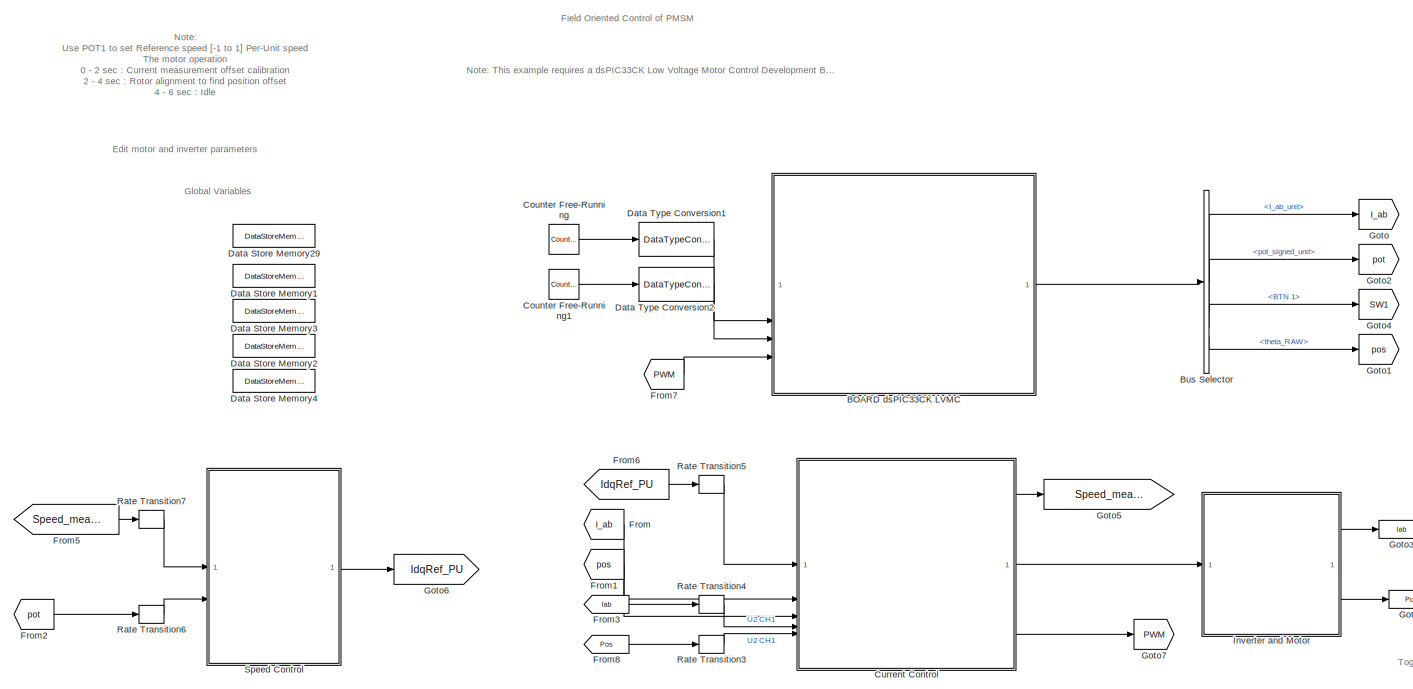
[diagram: root canvas - part 1/2, most of the canvas]
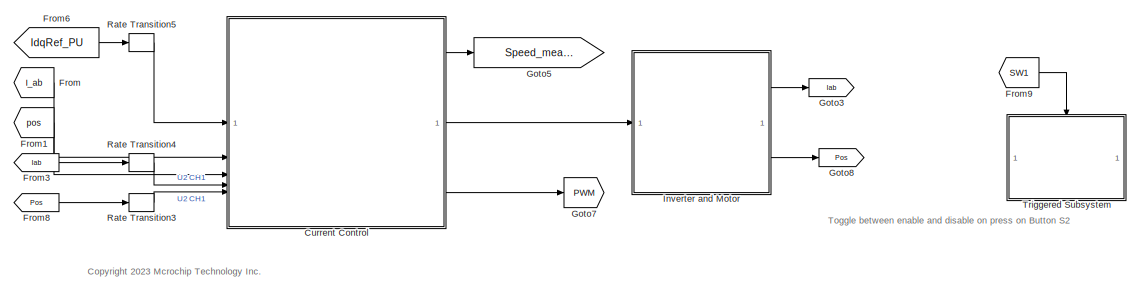
[diagram: root canvas - part 2/2, bottom center region]
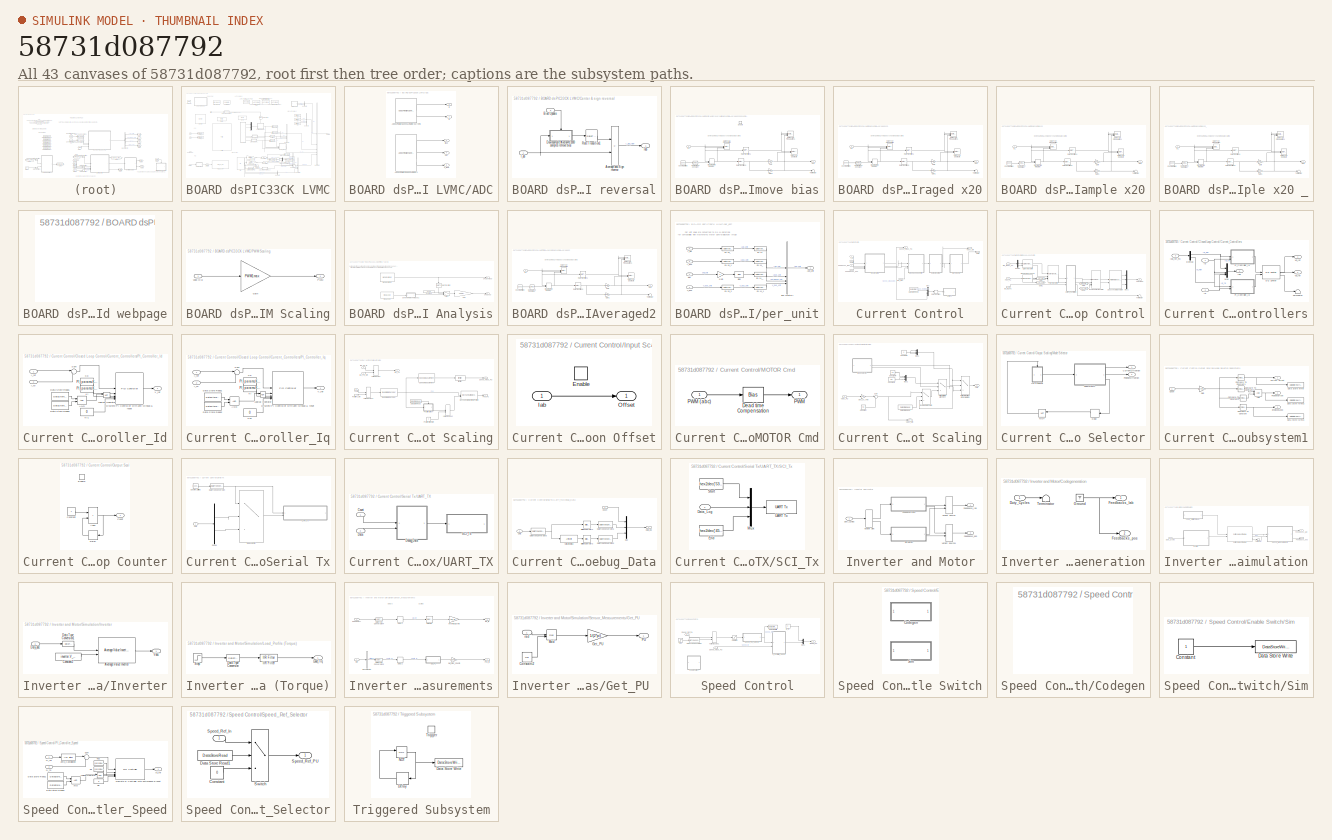
[diagram: thumbnail index - all 43 canvases of the model, root first then tree order]
MODEL slx_58731d087792
KIND model
CONFIG AbsTol = auto
CONFIG EnableMultiTasking = on
CONFIG FixedStep = 50e-6
CONFIG InitFcn = mcb_pmsm_foc_encoder_dsPIC33_data;
CONFIG MaxStep = auto
CONFIG MinStep = auto
CONFIG PostLoadFcn = mcb_pmsm_foc_encoder_dsPIC33_data;
CONFIG RelTol = 1e-3
CONFIG SampleTimeConstraint = Unconstrained
CONFIG SolverName = FixedStepDiscrete
CONFIG StartTime = 0.0
CONFIG StopTime = 10.0
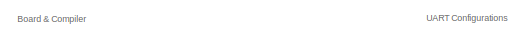
[diagram: BOARD dsPIC33CK LVMC - part 1/5, top left region]
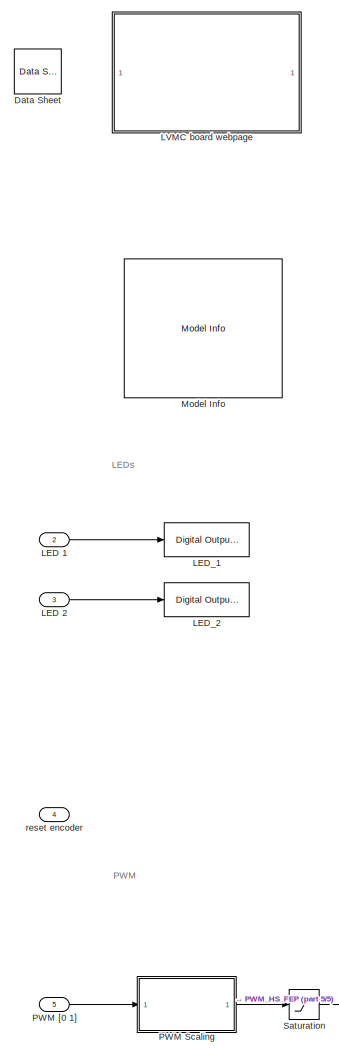
[diagram: BOARD dsPIC33CK LVMC - part 2/5, left side, full height]
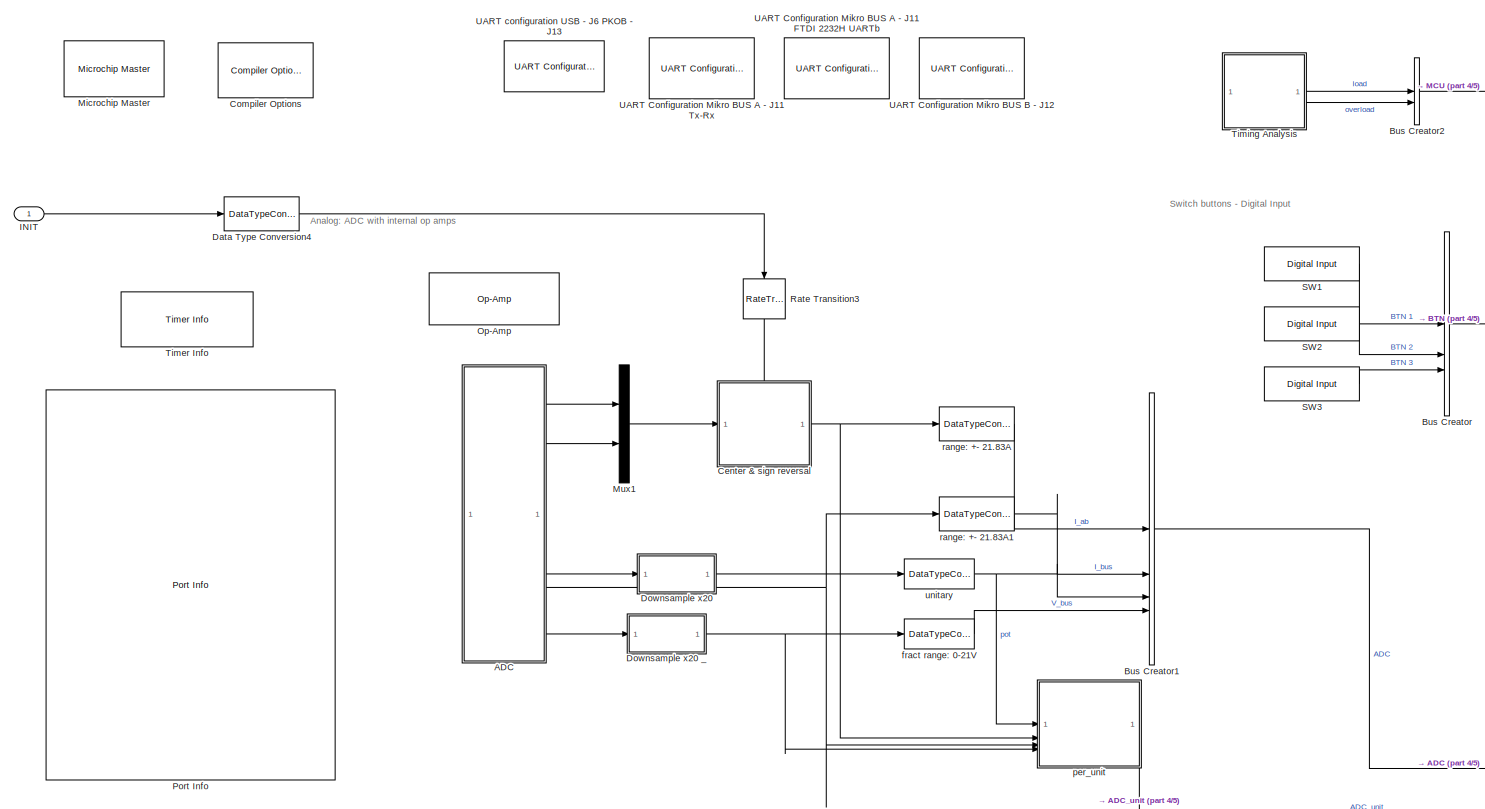
[diagram: BOARD dsPIC33CK LVMC - part 3/5, central region]
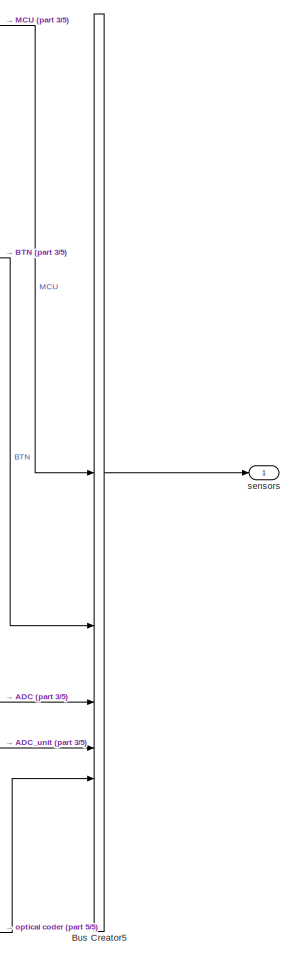
[diagram: BOARD dsPIC33CK LVMC - part 4/5, right side, full height]
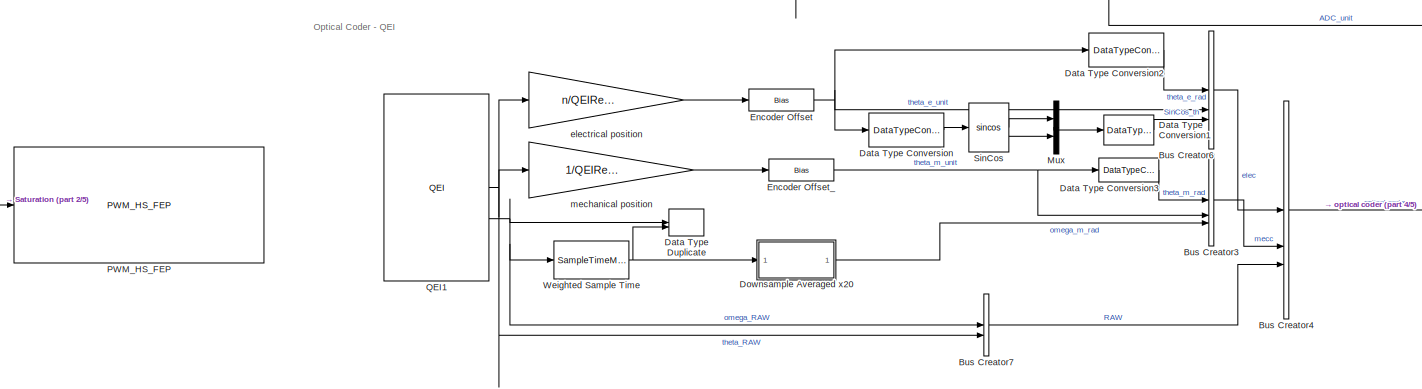
[diagram: BOARD dsPIC33CK LVMC - part 5/5, bottom center region]
BLOCK [SubSystem] BOARD dsPIC33CK LVMC
  AttributesFormatString = %<boardVariants>
BLOCK [SubSystem] BOARD dsPIC33CK LVMC/ADC
BLOCK [Reference] BOARD dsPIC33CK LVMC/ADC/ADC dsPIC High Speed SAR Motor Currents  REF=MCHP_Blockset/Analog IO/ADC dsPIC
High Speed SAR
  SourceBlock = MCHP_Blockset/Analog IO/ADC dsPIC\nHigh Speed SAR
  SourceProductName = MPLAB Device Blocks for Simulink
  SourceType = ADC SAR for dsPIC EP GS family
  UserDataPersistent = on
BLOCK [Reference] BOARD dsPIC33CK LVMC/ADC/ADC dsPIC High Speed SAR others  REF=MCHP_Blockset/Analog IO/ADC dsPIC
High Speed SAR
  SourceBlock = MCHP_Blockset/Analog IO/ADC dsPIC\nHigh Speed SAR
  SourceProductName = MPLAB Device Blocks for Simulink
  SourceType = ADC SAR for dsPIC EP GS family
  UserDataPersistent = on
BLOCK [Outport] BOARD dsPIC33CK LVMC/ADC/IBus
  Port = 3
  VectorParamsAs1DForOutWhenUnconnected = off
BLOCK [Outport] BOARD dsPIC33CK LVMC/ADC/Ia
  VectorParamsAs1DForOutWhenUnconnected = off
BLOCK [Outport] BOARD dsPIC33CK LVMC/ADC/Ib
  Port = 2
  VectorParamsAs1DForOutWhenUnconnected = off
BLOCK [Outport] BOARD dsPIC33CK LVMC/ADC/V_BUS
  Port = 5
  VectorParamsAs1DForOutWhenUnconnected = off
BLOCK [Outport] BOARD dsPIC33CK LVMC/ADC/pot
  Port = 4
  VectorParamsAs1DForOutWhenUnconnected = off
BLOCK [BusCreator] BOARD dsPIC33CK LVMC/Bus Creator
  DisplayOption = bar
  InheritFromInputs = on
  Inputs = 3
BLOCK [BusCreator] BOARD dsPIC33CK LVMC/Bus Creator1
  DisplayOption = bar
  InheritFromInputs = on
  Inputs = 4
BLOCK [BusCreator] BOARD dsPIC33CK LVMC/Bus Creator2
  DisplayOption = bar
  InheritFromInputs = on
  Inputs = 2
BLOCK [BusCreator] BOARD dsPIC33CK LVMC/Bus Creator3
  DisplayOption = bar
  InheritFromInputs = on
  Inputs = 3
BLOCK [BusCreator] BOARD dsPIC33CK LVMC/Bus Creator4
  DisplayOption = bar
  InheritFromInputs = on
  Inputs = 3
BLOCK [BusCreator] BOARD dsPIC33CK LVMC/Bus Creator5
  DisplayOption = bar
  InheritFromInputs = on
  Inputs = 5
BLOCK [BusCreator] BOARD dsPIC33CK LVMC/Bus Creator6
  DisplayOption = bar
  InheritFromInputs = on
  Inputs = 3
BLOCK [BusCreator] BOARD dsPIC33CK LVMC/Bus Creator7
  DisplayOption = bar
  InheritFromInputs = on
  Inputs = 2
BLOCK [SubSystem] BOARD dsPIC33CK LVMC/Center & sign reversal
  PortSchema = {"entries":[{"content":{"sides":[{"content":{"connectorIds":["In1"]},"type":"ConnectorPlacement.EquallySpacedRectSide","uuid":"1da2d50f-954e-44e3-a706-82d0cac25b49"},{"content":{"connectorIds":["Out1"],"side":"RIGHT"},"type":"ConnectorPlacement.EquallySpacedRectSide","uuid":"aa5749a4-81aa-445f-af4e-ef6f5801fff3"},{"content":{"connectorIds":["In2"],"side":"TOP"},"type":"ConnectorPlacement.EquallySp...<+245ch>
BLOCK [Sum] BOARD dsPIC33CK LVMC/Center & sign reversal/Average and Sign reverse
  AccumDataTypeStr = Inherit: Same as first input
  IconShape = rectangular
  Inputs = +-
  OutDataTypeStr = Inherit: Same as first input
  SaturateOnIntegerOverflow = on
BLOCK [Inport] BOARD dsPIC33CK LVMC/Center & sign reversal/Bias Update
  Port = 2
BLOCK [SubSystem] BOARD dsPIC33CK LVMC/Center & sign reversal/Downsample Averaged 2000 samples remove bias
BLOCK [Reference] BOARD dsPIC33CK LVMC/Center & sign reversal/Downsample Averaged 2000 samples remove bias/Compare To Constant  REF=simulink/Logic and Bit
Operations/Compare
To Constant
  SourceBlock = simulink/Logic and Bit\nOperations/Compare\nTo Constant
  SourceType = Compare To Constant
BLOCK [Reference] BOARD dsPIC33CK LVMC/Center & sign reversal/Downsample Averaged 2000 samples remove bias/Counter Limited  REF=simulink/Sources/Counter
Limited
  SourceBlock = simulink/Sources/Counter\nLimited
  SourceType = Counter Limited
BLOCK [DataTypeDuplicate] BOARD dsPIC33CK LVMC/Center & sign reversal/Downsample Averaged 2000 samples remove bias/Data Type Duplicate
BLOCK [Reference] BOARD dsPIC33CK LVMC/Center & sign reversal/Downsample Averaged 2000 samples remove bias/Data Type Propagation  REF=simulink/Signal
Attributes/Data Type
Propagation
  SourceBlock = simulink/Signal\nAttributes/Data Type\nPropagation
  SourceType = Data Type Propagation
BLOCK [Reference] BOARD dsPIC33CK LVMC/Center & sign reversal/Downsample Averaged 2000 samples remove bias/Data Type Propagation1  REF=simulink/Signal
Attributes/Data Type
Propagation
  SourceBlock = simulink/Signal\nAttributes/Data Type\nPropagation
  SourceType = Data Type Propagation
BLOCK [DiscreteIntegrator] BOARD dsPIC33CK LVMC/Center & sign reversal/Downsample Averaged 2000 samples remove bias/Discrete-Time Integrator
  ExternalReset = sampled level
  ICPrevOutput = DiscIntNeverNeededParam
  ICPrevScaledInput = DiscIntNeverNeededParam
  InitialConditionSetting = Auto
  IntegratorMethod = Accumulation: Backward Euler
  OutDataTypeStr = Inherit: Inherit via back propagation
  SampleTime = -1
  gainval = 1
BLOCK [EnablePort] BOARD dsPIC33CK LVMC/Center & sign reversal/Downsample Averaged 2000 samples remove bias/Enable
BLOCK [Gain] BOARD dsPIC33CK LVMC/Center & sign reversal/Downsample Averaged 2000 samples remove bias/Gain
  Gain = 1/DownSample
  OutDataTypeStr = Inherit: Inherit via back propagation
  RndMeth = Round
BLOCK [Gain] BOARD dsPIC33CK LVMC/Center & sign reversal/Downsample Averaged 2000 samples remove bias/Gain1
  Gain = 1/DownSample
  OutDataTypeStr = Inherit: Inherit via back propagation
BLOCK [Inport] BOARD dsPIC33CK LVMC/Center & sign reversal/Downsample Averaged 2000 samples remove bias/In1
BLOCK [Outport] BOARD dsPIC33CK LVMC/Center & sign reversal/Downsample Averaged 2000 samples remove bias/Out1
  VectorParamsAs1DForOutWhenUnconnected = off
BLOCK [RateTransition] BOARD dsPIC33CK LVMC/Center & sign reversal/Downsample Averaged 2000 samples remove bias/Rate Transition1
  OutPortSampleTime = DownSample
  OutPortSampleTimeMultiple = DownSample
  OutPortSampleTimeOpt = Multiple of input port sample time
BLOCK [RateTransition] BOARD dsPIC33CK LVMC/Center & sign reversal/Downsample Averaged 2000 samples remove bias/Rate Transition3
  OutPortSampleTime = DownSample
  OutPortSampleTimeMultiple = DownSample
  OutPortSampleTimeOpt = Multiple of input port sample time
BLOCK [Terminator] BOARD dsPIC33CK LVMC/Center & sign reversal/Downsample Averaged 2000 samples remove bias/Terminator
BLOCK [Inport] BOARD dsPIC33CK LVMC/Center & sign reversal/I_ab
BLOCK [Outport] BOARD dsPIC33CK LVMC/Center & sign reversal/Iab
BLOCK [RateTransition] BOARD dsPIC33CK LVMC/Center & sign reversal/Rate Transition1
  Deterministic = off
BLOCK [Reference] BOARD dsPIC33CK LVMC/Compiler Options  REF=MCHP_Blockset/System Configuration/Compiler Options
  Priority = 1
  SourceBlock = MCHP_Blockset/System Configuration/Compiler Options
  SourceProductName = MPLAB Device Blocks for Simulink
BLOCK [Reference] BOARD dsPIC33CK LVMC/Data Sheet  REF=MCHP_Blockset/System Info/Data Sheet
  AttributesFormatString = %<cpy_MCHP_Id>
  SourceBlock = MCHP_Blockset/System Info/Data Sheet
  SourceProductName = MPLAB Device Blocks for Simulink
BLOCK [DataTypeConversion] BOARD dsPIC33CK LVMC/Data Type Conversion
  RndMeth = Floor
  SaturateOnIntegerOverflow = off
BLOCK [DataTypeConversion] BOARD dsPIC33CK LVMC/Data Type Conversion1
  RndMeth = Floor
  SaturateOnIntegerOverflow = off
BLOCK [DataTypeConversion] BOARD dsPIC33CK LVMC/Data Type Conversion2
  ConvertRealWorld = Stored Integer (SI)
  OutDataTypeStr = fixdt(1,16,(2*pi)/2^16,0)
  RndMeth = Floor
  SaturateOnIntegerOverflow = off
BLOCK [DataTypeConversion] BOARD dsPIC33CK LVMC/Data Type Conversion3
  ConvertRealWorld = Stored Integer (SI)
  OutDataTypeStr = fixdt(1,16,(2*pi)/2^16,0)
  RndMeth = Floor
  SaturateOnIntegerOverflow = off
BLOCK [DataTypeConversion] BOARD dsPIC33CK LVMC/Data Type Conversion4
  OutDataTypeStr = boolean
  RndMeth = Floor
  SaturateOnIntegerOverflow = off
BLOCK [DataTypeDuplicate] BOARD dsPIC33CK LVMC/Data Type Duplicate
BLOCK [SubSystem] BOARD dsPIC33CK LVMC/Downsample Averaged x20
BLOCK [Reference] BOARD dsPIC33CK LVMC/Downsample Averaged x20/Compare To Constant  REF=simulink/Logic and Bit
Operations/Compare
To Constant
  SourceBlock = simulink/Logic and Bit\nOperations/Compare\nTo Constant
  SourceType = Compare To Constant
BLOCK [Reference] BOARD dsPIC33CK LVMC/Downsample Averaged x20/Counter Limited  REF=simulink/Sources/Counter
Limited
  SourceBlock = simulink/Sources/Counter\nLimited
  SourceType = Counter Limited
BLOCK [DataTypeDuplicate] BOARD dsPIC33CK LVMC/Downsample Averaged x20/Data Type Duplicate
BLOCK [Reference] BOARD dsPIC33CK LVMC/Downsample Averaged x20/Data Type Propagation  REF=simulink/Signal
Attributes/Data Type
Propagation
  SourceBlock = simulink/Signal\nAttributes/Data Type\nPropagation
  SourceType = Data Type Propagation
BLOCK [Reference] BOARD dsPIC33CK LVMC/Downsample Averaged x20/Data Type Propagation1  REF=simulink/Signal
Attributes/Data Type
Propagation
  SourceBlock = simulink/Signal\nAttributes/Data Type\nPropagation
  SourceType = Data Type Propagation
BLOCK [DiscreteIntegrator] BOARD dsPIC33CK LVMC/Downsample Averaged x20/Discrete-Time Integrator
  ExternalReset = sampled level
  ICPrevOutput = DiscIntNeverNeededParam
  ICPrevScaledInput = DiscIntNeverNeededParam
  InitialConditionSetting = Auto
  IntegratorMethod = Accumulation: Backward Euler
  OutDataTypeStr = Inherit: Inherit via back propagation
  SampleTime = -1
  gainval = 1
BLOCK [Gain] BOARD dsPIC33CK LVMC/Downsample Averaged x20/Gain
  Gain = 1/DownSample
  OutDataTypeStr = Inherit: Inherit via back propagation
  RndMeth = Round
BLOCK [Gain] BOARD dsPIC33CK LVMC/Downsample Averaged x20/Gain1
  Gain = 1/DownSample
  OutDataTypeStr = Inherit: Inherit via back propagation
BLOCK [Inport] BOARD dsPIC33CK LVMC/Downsample Averaged x20/In1
BLOCK [Outport] BOARD dsPIC33CK LVMC/Downsample Averaged x20/Out1
  VectorParamsAs1DForOutWhenUnconnected = off
BLOCK [RateTransition] BOARD dsPIC33CK LVMC/Downsample Averaged x20/Rate Transition1
  OutPortSampleTime = DownSample
  OutPortSampleTimeMultiple = DownSample
  OutPortSampleTimeOpt = Multiple of input port sample time
BLOCK [RateTransition] BOARD dsPIC33CK LVMC/Downsample Averaged x20/Rate Transition3
  OutPortSampleTime = DownSample
  OutPortSampleTimeMultiple = DownSample
  OutPortSampleTimeOpt = Multiple of input port sample time
BLOCK [Terminator] BOARD dsPIC33CK LVMC/Downsample Averaged x20/Terminator
BLOCK [SubSystem] BOARD dsPIC33CK LVMC/Downsample x20
BLOCK [SubSystem] BOARD dsPIC33CK LVMC/Downsample x20 _
BLOCK [Reference] BOARD dsPIC33CK LVMC/Downsample x20 _/Compare To Constant  REF=simulink/Logic and Bit
Operations/Compare
To Constant
  SourceBlock = simulink/Logic and Bit\nOperations/Compare\nTo Constant
  SourceType = Compare To Constant
BLOCK [Reference] BOARD dsPIC33CK LVMC/Downsample x20 _/Counter Limited  REF=simulink/Sources/Counter
Limited
  SourceBlock = simulink/Sources/Counter\nLimited
  SourceType = Counter Limited
BLOCK [DataTypeDuplicate] BOARD dsPIC33CK LVMC/Downsample x20 _/Data Type Duplicate
BLOCK [Reference] BOARD dsPIC33CK LVMC/Downsample x20 _/Data Type Propagation  REF=simulink/Signal
Attributes/Data Type
Propagation
  SourceBlock = simulink/Signal\nAttributes/Data Type\nPropagation
  SourceType = Data Type Propagation
BLOCK [Reference] BOARD dsPIC33CK LVMC/Downsample x20 _/Data Type Propagation1  REF=simulink/Signal
Attributes/Data Type
Propagation
  SourceBlock = simulink/Signal\nAttributes/Data Type\nPropagation
  SourceType = Data Type Propagation
BLOCK [DiscreteIntegrator] BOARD dsPIC33CK LVMC/Downsample x20 _/Discrete-Time Integrator
  ExternalReset = sampled level
  ICPrevOutput = DiscIntNeverNeededParam
  ICPrevScaledInput = DiscIntNeverNeededParam
  InitialConditionSetting = Auto
  IntegratorMethod = Accumulation: Backward Euler
  OutDataTypeStr = Inherit: Inherit via back propagation
  SampleTime = -1
  gainval = 1
BLOCK [Gain] BOARD dsPIC33CK LVMC/Downsample x20 _/Gain
  Gain = 1/DownSample
  OutDataTypeStr = Inherit: Inherit via back propagation
  RndMeth = Round
BLOCK [Gain] BOARD dsPIC33CK LVMC/Downsample x20 _/Gain1
  Gain = 1/DownSample
  OutDataTypeStr = Inherit: Inherit via back propagation
BLOCK [Inport] BOARD dsPIC33CK LVMC/Downsample x20 _/In1
BLOCK [Outport] BOARD dsPIC33CK LVMC/Downsample x20 _/Out1
  VectorParamsAs1DForOutWhenUnconnected = off
BLOCK [RateTransition] BOARD dsPIC33CK LVMC/Downsample x20 _/Rate Transition1
  OutPortSampleTime = DownSample
  OutPortSampleTimeMultiple = DownSample
  OutPortSampleTimeOpt = Multiple of input port sample time
BLOCK [RateTransition] BOARD dsPIC33CK LVMC/Downsample x20 _/Rate Transition3
  OutPortSampleTime = DownSample
  OutPortSampleTimeMultiple = DownSample
  OutPortSampleTimeOpt = Multiple of input port sample time
BLOCK [Terminator] BOARD dsPIC33CK LVMC/Downsample x20 _/Terminator
BLOCK [Reference] BOARD dsPIC33CK LVMC/Downsample x20/Compare To Constant  REF=simulink/Logic and Bit
Operations/Compare
To Constant
  SourceBlock = simulink/Logic and Bit\nOperations/Compare\nTo Constant
  SourceType = Compare To Constant
BLOCK [Reference] BOARD dsPIC33CK LVMC/Downsample x20/Counter Limited  REF=simulink/Sources/Counter
Limited
  SourceBlock = simulink/Sources/Counter\nLimited
  SourceType = Counter Limited
BLOCK [DataTypeDuplicate] BOARD dsPIC33CK LVMC/Downsample x20/Data Type Duplicate
BLOCK [Reference] BOARD dsPIC33CK LVMC/Downsample x20/Data Type Propagation  REF=simulink/Signal
Attributes/Data Type
Propagation
  SourceBlock = simulink/Signal\nAttributes/Data Type\nPropagation
  SourceType = Data Type Propagation
BLOCK [Reference] BOARD dsPIC33CK LVMC/Downsample x20/Data Type Propagation1  REF=simulink/Signal
Attributes/Data Type
Propagation
  SourceBlock = simulink/Signal\nAttributes/Data Type\nPropagation
  SourceType = Data Type Propagation
BLOCK [DiscreteIntegrator] BOARD dsPIC33CK LVMC/Downsample x20/Discrete-Time Integrator
  ExternalReset = sampled level
  ICPrevOutput = DiscIntNeverNeededParam
  ICPrevScaledInput = DiscIntNeverNeededParam
  InitialConditionSetting = Auto
  IntegratorMethod = Accumulation: Backward Euler
  OutDataTypeStr = Inherit: Inherit via back propagation
  SampleTime = -1
  gainval = 1
BLOCK [Gain] BOARD dsPIC33CK LVMC/Downsample x20/Gain
  Gain = 1/DownSample
  OutDataTypeStr = Inherit: Inherit via back propagation
  RndMeth = Round
BLOCK [Gain] BOARD dsPIC33CK LVMC/Downsample x20/Gain1
  Gain = 1/DownSample
  OutDataTypeStr = Inherit: Inherit via back propagation
BLOCK [Inport] BOARD dsPIC33CK LVMC/Downsample x20/In1
BLOCK [Outport] BOARD dsPIC33CK LVMC/Downsample x20/Out1
  VectorParamsAs1DForOutWhenUnconnected = off
BLOCK [RateTransition] BOARD dsPIC33CK LVMC/Downsample x20/Rate Transition1
  OutPortSampleTime = DownSample
  OutPortSampleTimeMultiple = DownSample
  OutPortSampleTimeOpt = Multiple of input port sample time
BLOCK [RateTransition] BOARD dsPIC33CK LVMC/Downsample x20/Rate Transition3
  OutPortSampleTime = DownSample
  OutPortSampleTimeMultiple = DownSample
  OutPortSampleTimeOpt = Multiple of input port sample time
BLOCK [Terminator] BOARD dsPIC33CK LVMC/Downsample x20/Terminator
BLOCK [Bias] BOARD dsPIC33CK LVMC/Encoder Offset
  Bias = mod(1,round((n*QEIOffset)/(2*pi)))
  SaturateOnIntegerOverflow = off
BLOCK [Bias] BOARD dsPIC33CK LVMC/Encoder Offset_
  Bias = mod(1,round(QEIOffset/(2*pi)))
  SaturateOnIntegerOverflow = off
BLOCK [Inport] BOARD dsPIC33CK LVMC/INIT
  SignalType = real
  VarSizeSig = No
BLOCK [Inport] BOARD dsPIC33CK LVMC/LED 1
  Port = 2
BLOCK [Inport] BOARD dsPIC33CK LVMC/LED 2
  Port = 3
BLOCK [Reference] BOARD dsPIC33CK LVMC/LED_1  REF=MCHP_Blockset/Digital IO/Digital Output
Write
  SourceBlock = MCHP_Blockset/Digital IO/Digital Output\nWrite
  SourceProductName = MPLAB Device Blocks for Simulink
  SourceType = Output driver for Digital Output Pins
BLOCK [Reference] BOARD dsPIC33CK LVMC/LED_2  REF=MCHP_Blockset/Digital IO/Digital Output
Write
  SourceBlock = MCHP_Blockset/Digital IO/Digital Output\nWrite
  SourceProductName = MPLAB Device Blocks for Simulink
  SourceType = Output driver for Digital Output Pins
BLOCK [SubSystem] BOARD dsPIC33CK LVMC/LVMC board webpage
  OpenFcn = %web('www.microchip.com/DevelopmentTools/ProductDetails.aspx?PartNO=DM330021-2','-browser'); % MCLV2\nweb('https://www.microchip.com/en-us/development-tool/DM330031','-browser'); % LVMC\n%pause(2);\n%web('http://www.microchipdirect.com/productsearch.aspx?keywords=AC300020','-browser');\n%web('www.microchipdirect.com/ProductSearch.aspx?keywords=AC300022','-browser');
BLOCK [Reference] BOARD dsPIC33CK LVMC/Microchip Master  REF=MCHP_Blockset/System Configuration/Microchip Master
  Priority = 1
  SourceBlock = MCHP_Blockset/System Configuration/Microchip Master
  SourceProductName = MPLAB Device Blocks for Simulink
BLOCK [Reference] BOARD dsPIC33CK LVMC/Model Info  REF=simulink/Model-Wide
Utilities/Model Info
  SourceBlock = simulink/Model-Wide\nUtilities/Model Info
  SourceType = CMBlock
BLOCK [Mux] BOARD dsPIC33CK LVMC/Mux
  DisplayOption = bar
  Inputs = 2
BLOCK [Mux] BOARD dsPIC33CK LVMC/Mux1
  DisplayOption = bar
  Inputs = 2
BLOCK [Reference] BOARD dsPIC33CK LVMC/Op-Amp  REF=MCHP_Blockset/Analog IO/Op-Amp
  Priority = -2000
  SourceBlock = MCHP_Blockset/Analog IO/Op-Amp
  SourceProductName = MPLAB Device Blocks for Simulink
  SourceType = Configure on chip Op AMP
  UserDataPersistent = on
BLOCK [SubSystem] BOARD dsPIC33CK LVMC/PWM Scaling
BLOCK [Gain] BOARD dsPIC33CK LVMC/PWM Scaling/Gain
  Gain = PWM1max
  OutDataTypeStr = uint16
BLOCK [Outport] BOARD dsPIC33CK LVMC/PWM Scaling/PWM
  VectorParamsAs1DForOutWhenUnconnected = off
BLOCK [Inport] BOARD dsPIC33CK LVMC/PWM Scaling/vabc [0 1]
BLOCK [Inport] BOARD dsPIC33CK LVMC/PWM [0 1]
  Port = 5
  SignalType = real
  Unit = 1
  VarSizeSig = No
BLOCK [Reference] BOARD dsPIC33CK LVMC/PWM_HS_FEP  REF=MCHP_Blockset/PWM IO/PWM_HS_FEP
  Priority = -2000
  SourceBlock = MCHP_Blockset/PWM IO/PWM_HS_FEP
  SourceProductName = MPLAB Device Blocks for Simulink
  SourceType = PWM High-Speed Fine-Edge-Placement
  UserDataPersistent = on
BLOCK [Reference] BOARD dsPIC33CK LVMC/Port Info  REF=MCHP_Blockset/System Info/Port Info
  SourceBlock = MCHP_Blockset/System Info/Port Info
  SourceProductName = MPLAB Device Blocks for Simulink
BLOCK [Reference] BOARD dsPIC33CK LVMC/QEI1  REF=MCHP_Blockset/QEI/QEI
  SourceBlock = MCHP_Blockset/QEI/QEI
  SourceProductName = MPLAB Device Blocks for Simulink
  SourceType = Output Driver for Quadrature Encoder Interface (QEI) peripheral
  UserDataPersistent = on
BLOCK [RateTransition] BOARD dsPIC33CK LVMC/Rate Transition3
  Deterministic = off
  NameLocation = left
BLOCK [Reference] BOARD dsPIC33CK LVMC/SW1  REF=MCHP_Blockset/Digital IO/Digital Input
  SourceBlock = MCHP_Blockset/Digital IO/Digital Input
  SourceProductName = MPLAB Device Blocks for Simulink
  SourceType = Input driver for Digital Input Pins
BLOCK [Reference] BOARD dsPIC33CK LVMC/SW2  REF=MCHP_Blockset/Digital IO/Digital Input
  SourceBlock = MCHP_Blockset/Digital IO/Digital Input
  SourceProductName = MPLAB Device Blocks for Simulink
  SourceType = Input driver for Digital Input Pins
BLOCK [Reference] BOARD dsPIC33CK LVMC/SW3  REF=MCHP_Blockset/Digital IO/Digital Input
  SourceBlock = MCHP_Blockset/Digital IO/Digital Input
  SourceProductName = MPLAB Device Blocks for Simulink
  SourceType = Input driver for Digital Input Pins
BLOCK [Saturate] BOARD dsPIC33CK LVMC/Saturation
  LinearizeAsGain = off
  LowerLimit = PWM1max*0.03
  OutDataTypeStr = uint16
  UpperLimit = PWM1max*0.97
BLOCK [Trigonometry] BOARD dsPIC33CK LVMC/SinCos
  AngleUnit = revolution
  ApproximationMethod = Lookup
  Operator = sincos
  TableDataTypeStr = fixdt(1,16,14)
BLOCK [Reference] BOARD dsPIC33CK LVMC/Timer Info  REF=MCHP_Blockset/System Info/Timer Info
  SourceBlock = MCHP_Blockset/System Info/Timer Info
  SourceProductName = MPLAB Device Blocks for Simulink
BLOCK [SubSystem] BOARD dsPIC33CK LVMC/Timing Analysis
BLOCK [Outport] BOARD dsPIC33CK LVMC/Timing Analysis/CPU Load
  SampleTime = .0005*200
  Unit = %
BLOCK [Outport] BOARD dsPIC33CK LVMC/Timing Analysis/CPU Overload
  Port = 2
BLOCK [SubSystem] BOARD dsPIC33CK LVMC/Timing Analysis/Downsample Averaged2
BLOCK [Reference] BOARD dsPIC33CK LVMC/Timing Analysis/Downsample Averaged2/Compare To Constant  REF=simulink/Logic and Bit
Operations/Compare
To Constant
  SourceBlock = simulink/Logic and Bit\nOperations/Compare\nTo Constant
  SourceType = Compare To Constant
BLOCK [Reference] BOARD dsPIC33CK LVMC/Timing Analysis/Downsample Averaged2/Counter Limited  REF=simulink/Sources/Counter
Limited
  SourceBlock = simulink/Sources/Counter\nLimited
  SourceType = Counter Limited
BLOCK [DataTypeDuplicate] BOARD dsPIC33CK LVMC/Timing Analysis/Downsample Averaged2/Data Type Duplicate
BLOCK [Reference] BOARD dsPIC33CK LVMC/Timing Analysis/Downsample Averaged2/Data Type Propagation  REF=simulink/Signal
Attributes/Data Type
Propagation
  SourceBlock = simulink/Signal\nAttributes/Data Type\nPropagation
  SourceType = Data Type Propagation
BLOCK [Reference] BOARD dsPIC33CK LVMC/Timing Analysis/Downsample Averaged2/Data Type Propagation1  REF=simulink/Signal
Attributes/Data Type
Propagation
  SourceBlock = simulink/Signal\nAttributes/Data Type\nPropagation
  SourceType = Data Type Propagation
BLOCK [DiscreteIntegrator] BOARD dsPIC33CK LVMC/Timing Analysis/Downsample Averaged2/Discrete-Time Integrator
  ExternalReset = sampled level
  ICPrevOutput = DiscIntNeverNeededParam
  ICPrevScaledInput = DiscIntNeverNeededParam
  InitialConditionSetting = Auto
  IntegratorMethod = Accumulation: Backward Euler
  OutDataTypeStr = Inherit: Inherit via back propagation
  SampleTime = -1
  gainval = 1
BLOCK [Gain] BOARD dsPIC33CK LVMC/Timing Analysis/Downsample Averaged2/Gain
  Gain = 1/DownSample
  OutDataTypeStr = Inherit: Inherit via back propagation
BLOCK [Gain] BOARD dsPIC33CK LVMC/Timing Analysis/Downsample Averaged2/Gain1
  Gain = 1/DownSample
  OutDataTypeStr = Inherit: Inherit via back propagation
BLOCK [Inport] BOARD dsPIC33CK LVMC/Timing Analysis/Downsample Averaged2/In1
BLOCK [Outport] BOARD dsPIC33CK LVMC/Timing Analysis/Downsample Averaged2/Out1
  VectorParamsAs1DForOutWhenUnconnected = off
BLOCK [RateTransition] BOARD dsPIC33CK LVMC/Timing Analysis/Downsample Averaged2/Rate Transition1
  Deterministic = off
  OutPortSampleTime = [InputSampleTime * DownSample]
BLOCK [RateTransition] BOARD dsPIC33CK LVMC/Timing Analysis/Downsample Averaged2/Rate Transition3
  OutPortSampleTime = [InputSampleTime * DownSample]
BLOCK [Terminator] BOARD dsPIC33CK LVMC/Timing Analysis/Downsample Averaged2/Terminator
BLOCK [Gain] BOARD dsPIC33CK LVMC/Timing Analysis/Gain
  Gain = 10e-9/.0005 * 100
  OutDataTypeStr = fixdt(0,16)
  OutMax = 100
  OutMin = 0
  RndMeth = Simplest
  SaturateOnIntegerOverflow = on
BLOCK [Reference] BOARD dsPIC33CK LVMC/Timing Analysis/MCU Load  REF=MCHP_Blockset/Profiling/MCU Load
  SourceBlock = MCHP_Blockset/Profiling/MCU Load
  SourceProductName = MPLAB Device Blocks for Simulink
  SourceType = MCU Load (Profile execution time)
BLOCK [Reference] BOARD dsPIC33CK LVMC/Timing Analysis/MCU Overload  REF=MCHP_Blockset/Profiling/MCU Overload
  SourceBlock = MCHP_Blockset/Profiling/MCU Overload
  SourceProductName = MPLAB Device Blocks for Simulink
  SourceType = MCU Over-Load (Profile execution time)
BLOCK [Constant] BOARD dsPIC33CK LVMC/Timing Analysis/Overload
  OutDataTypeStr = Inherit: Inherit via back propagation
  Value = 65535
BLOCK [RateTransition] BOARD dsPIC33CK LVMC/Timing Analysis/Rate Transition
  Deterministic = off
  NameLocation = left
  OutPortSampleTime = .0005*200
BLOCK [Switch] BOARD dsPIC33CK LVMC/Timing Analysis/Switch
  Criteria = u2 ~= 0
  InputSameDT = off
  SaturateOnIntegerOverflow = off
BLOCK [Reference] BOARD dsPIC33CK LVMC/UART Configuration Mikro BUS A - J11 FTDI 2232H UARTb  REF=MCHP_Blockset/BUS UART/UART Configuration
  SourceBlock = MCHP_Blockset/BUS UART/UART Configuration
  SourceProductName = MPLAB Device Blocks for Simulink
  SourceType = Configuration for UART peripheral
BLOCK [Reference] BOARD dsPIC33CK LVMC/UART Configuration Mikro BUS A - J11 Tx-Rx  REF=MCHP_Blockset/BUS UART/UART Configuration
  SourceBlock = MCHP_Blockset/BUS UART/UART Configuration
  SourceProductName = MPLAB Device Blocks for Simulink
  SourceType = Configuration for UART peripheral
BLOCK [Reference] BOARD dsPIC33CK LVMC/UART Configuration Mikro BUS B - J12  REF=MCHP_Blockset/BUS UART/UART Configuration
  Commented = on
  SourceBlock = MCHP_Blockset/BUS UART/UART Configuration
  SourceProductName = MPLAB Device Blocks for Simulink
  SourceType = Configuration for UART peripheral
BLOCK [Reference] BOARD dsPIC33CK LVMC/UART configuration USB - J6 PKOB - J13  REF=MCHP_Blockset/BUS UART/UART Configuration
  SourceBlock = MCHP_Blockset/BUS UART/UART Configuration
  SourceProductName = MPLAB Device Blocks for Simulink
  SourceType = Configuration for UART peripheral
BLOCK [SampleTimeMath] BOARD dsPIC33CK LVMC/Weighted Sample Time
  OutDataTypeStr = Inherit: Inherit via back propagation
  TsampMathOp = /
  weightValue = QEIResolution / (2*pi)
BLOCK [Gain] BOARD dsPIC33CK LVMC/electrical position
  Gain = n/QEIResolution
  OutDataTypeStr = fixdt(0,16,16)
BLOCK [DataTypeConversion] BOARD dsPIC33CK LVMC/fract range: 0-21V
  ConvertRealWorld = Stored Integer (SI)
  OutDataTypeStr = fixdt(0,16,3.3/65536*21,0)
  RndMeth = Floor
  SaturateOnIntegerOverflow = off
BLOCK [Gain] BOARD dsPIC33CK LVMC/mechanical position
  Gain = 1/QEIResolution
  OutDataTypeStr = fixdt(0,16,16)
BLOCK [SubSystem] BOARD dsPIC33CK LVMC/per_unit
BLOCK [Outport] BOARD dsPIC33CK LVMC/per_unit/ADC_unit
BLOCK [Bias] BOARD dsPIC33CK LVMC/per_unit/Bias
  Bias = -1
  SaturateOnIntegerOverflow = off
BLOCK [BusCreator] BOARD dsPIC33CK LVMC/per_unit/Bus Creator7
  DisplayOption = bar
  InheritFromInputs = on
  Inputs = 4
BLOCK [Gain] BOARD dsPIC33CK LVMC/per_unit/Gain
  Gain = 2
  LockScale = on
  OutDataTypeStr = fixdt(1,16,15)
BLOCK [Inport] BOARD dsPIC33CK LVMC/per_unit/I_ab
  Port = 2
BLOCK [Inport] BOARD dsPIC33CK LVMC/per_unit/I_bus
  Port = 3
BLOCK [Inport] BOARD dsPIC33CK LVMC/per_unit/V_bus
  Port = 4
BLOCK [Inport] BOARD dsPIC33CK LVMC/per_unit/pot
BLOCK [DataTypeConversion] BOARD dsPIC33CK LVMC/per_unit/q1.14
  LockScale = on
  OutDataTypeStr = fixdt(1,16,14)
  RndMeth = Floor
  SaturateOnIntegerOverflow = off
BLOCK [DataTypeConversion] BOARD dsPIC33CK LVMC/per_unit/q1.14_
  LockScale = on
  OutDataTypeStr = fixdt(1,16,14)
  RndMeth = Floor
  SaturateOnIntegerOverflow = off
BLOCK [DataTypeConversion] BOARD dsPIC33CK LVMC/per_unit/q1.14_1
  LockScale = on
  OutDataTypeStr = fixdt(1,16,14)
  RndMeth = Floor
  SaturateOnIntegerOverflow = off
BLOCK [DataTypeConversion] BOARD dsPIC33CK LVMC/per_unit/q1.14__
  LockScale = on
  OutDataTypeStr = fixdt(1,16,14)
  RndMeth = Floor
  SaturateOnIntegerOverflow = off
BLOCK [DataTypeConversion] BOARD dsPIC33CK LVMC/per_unit/q1.15_
  ConvertRealWorld = Stored Integer (SI)
  LockScale = on
  OutDataTypeStr = fixdt(1,16,15)
  RndMeth = Floor
  SaturateOnIntegerOverflow = off
BLOCK [DataTypeConversion] BOARD dsPIC33CK LVMC/per_unit/q1.15_1
  ConvertRealWorld = Stored Integer (SI)
  LockScale = on
  OutDataTypeStr = fixdt(1,16,15)
  RndMeth = Floor
  SaturateOnIntegerOverflow = off
BLOCK [DataTypeConversion] BOARD dsPIC33CK LVMC/per_unit/q1.15_3
  ConvertRealWorld = Stored Integer (SI)
  LockScale = on
  OutDataTypeStr = fixdt(1,16,15)
  RndMeth = Floor
  SaturateOnIntegerOverflow = off
BLOCK [DataTypeConversion] BOARD dsPIC33CK LVMC/range: +- 21.83A
  ConvertRealWorld = Stored Integer (SI)
  OutDataTypeStr = fixdt(1,16,21.83/32768,0)
  RndMeth = Floor
  SaturateOnIntegerOverflow = off
BLOCK [DataTypeConversion] BOARD dsPIC33CK LVMC/range: +- 21.83A1
  ConvertRealWorld = Stored Integer (SI)
  OutDataTypeStr = fixdt(1,16,21.83/32768,0)
  RndMeth = Floor
  SaturateOnIntegerOverflow = off
BLOCK [Inport] BOARD dsPIC33CK LVMC/reset encoder
  Port = 4
BLOCK [Outport] BOARD dsPIC33CK LVMC/sensors
BLOCK [DataTypeConversion] BOARD dsPIC33CK LVMC/unitary
  ConvertRealWorld = Stored Integer (SI)
  OutDataTypeStr = fixdt(0,16,16)
  RndMeth = Floor
  SaturateOnIntegerOverflow = off
BLOCK [BusSelector] Bus Selector
  OutputSignals = ADC_unit.I_ab_unit,ADC_unit.pot_signed_unit,BTN.BTN 1,optical coder.RAW.theta_RAW
BLOCK [Reference] Counter Free-Running  REF=simulink/Sources/Counter
Free-Running
  SourceBlock = simulink/Sources/Counter\nFree-Running
  SourceType = Counter Free-Running
BLOCK [Reference] Counter Free-Running1  REF=simulink/Sources/Counter
Free-Running
  SourceBlock = simulink/Sources/Counter\nFree-Running
  SourceType = Counter Free-Running
BLOCK [SubSystem] Current Control
  VariantControl = Optimized
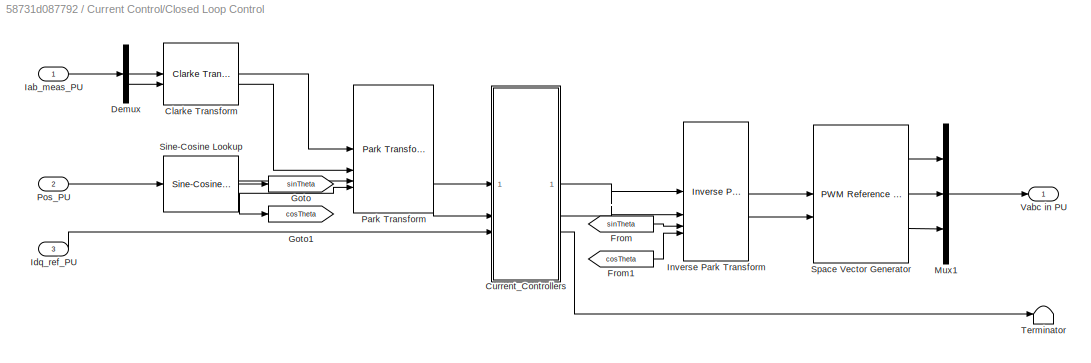
BLOCK [SubSystem] Current Control/Closed Loop Control
BLOCK [Reference] Current Control/Closed Loop Control/Clarke Transform  REF=mcbcontrolslib/Clarke Transform
  SourceBlock = mcbcontrolslib/Clarke Transform
  SourceType = Clarke Transform
BLOCK [SubSystem] Current Control/Closed Loop Control/Current_Controllers
BLOCK [Reference] Current Control/Closed Loop Control/Current_Controllers/DQ Limiter  REF=mcbcontrolslib/DQ Limiter
  SourceBlock = mcbcontrolslib/DQ Limiter
  SourceType = DQ Limiter
BLOCK [Demux] Current Control/Closed Loop Control/Current_Controllers/Demux
  Outputs = 2
BLOCK [Inport] Current Control/Closed Loop Control/Current_Controllers/Id
BLOCK [Outport] Current Control/Closed Loop Control/Current_Controllers/Idq
  Port = 3
  VectorParamsAs1DForOutWhenUnconnected = off
BLOCK [Inport] Current Control/Closed Loop Control/Current_Controllers/Idq_ref_PU
  Port = 3
BLOCK [Inport] Current Control/Closed Loop Control/Current_Controllers/Iq
  Port = 2
BLOCK [Mux] Current Control/Closed Loop Control/Current_Controllers/Mux
  DisplayOption = bar
BLOCK [SubSystem] Current Control/Closed Loop Control/Current_Controllers/PI_Controller_Id
  NameLocation = top
BLOCK [Logic] Current Control/Closed Loop Control/Current_Controllers/PI_Controller_Id/AND
  AllPortsSameDT = off
  IconShape = distinctive
  OutDataTypeStr = boolean
BLOCK [DataStoreRead] Current Control/Closed Loop Control/Current_Controllers/PI_Controller_Id/Data Store Read1
  DataStoreName = EnableFOC
  IndexOptions = Index vector (dialog)
  Indices = 1
  OutputSizes = 1
BLOCK [DataStoreRead] Current Control/Closed Loop Control/Current_Controllers/PI_Controller_Id/Data Store Read2
  DataStoreName = Enable
  IndexOptions = Index vector (dialog)
  Indices = 1
  OutputSizes = 1
BLOCK [Reference] Current Control/Closed Loop Control/Current_Controllers/PI_Controller_Id/Discrete PI Controller with anti-windup & reset  REF=slpidlib/PID Controller
  SourceBlock = slpidlib/PID Controller
  SourceType = PID 1dof
BLOCK [Inport] Current Control/Closed Loop Control/Current_Controllers/PI_Controller_Id/I_fb
  Port = 2
BLOCK [Inport] Current Control/Closed Loop Control/Current_Controllers/PI_Controller_Id/I_ref
BLOCK [Constant] Current Control/Closed Loop Control/Current_Controllers/PI_Controller_Id/Ki
  OutDataTypeStr = dataType
  SampleTime = -1
  Value = PI_params.Ki_i*Ts/2
BLOCK [Constant] Current Control/Closed Loop Control/Current_Controllers/PI_Controller_Id/Ki1
  NameLocation = top
  OutDataTypeStr = dataType
  SampleTime = -1
  Value = 0
BLOCK [Constant] Current Control/Closed Loop Control/Current_Controllers/PI_Controller_Id/Kp
  NameLocation = top
  OutDataTypeStr = dataType2
  SampleTime = -1
  Value = PI_params.Kp_i/2
BLOCK [Logic] Current Control/Closed Loop Control/Current_Controllers/PI_Controller_Id/Logical Operator
  AllPortsSameDT = off
  IconShape = distinctive
  Operator = NOT
  OutDataTypeStr = boolean
BLOCK [Sum] Current Control/Closed Loop Control/Current_Controllers/PI_Controller_Id/Sum
  AccumDataTypeStr = Inherit: Same as first input
  Inputs = |+-
  OutDataTypeStr = Inherit: Same as first input
BLOCK [Outport] Current Control/Closed Loop Control/Current_Controllers/PI_Controller_Id/V_ref
  VectorParamsAs1DForOutWhenUnconnected = off
BLOCK [SubSystem] Current Control/Closed Loop Control/Current_Controllers/PI_Controller_Iq
  NameLocation = top
BLOCK [Logic] Current Control/Closed Loop Control/Current_Controllers/PI_Controller_Iq/AND
  AllPortsSameDT = off
  IconShape = distinctive
  OutDataTypeStr = boolean
BLOCK [DataStoreRead] Current Control/Closed Loop Control/Current_Controllers/PI_Controller_Iq/Data Store Read1
  DataStoreName = EnableFOC
  IndexOptions = Index vector (dialog)
  Indices = 1
  OutputSizes = 1
BLOCK [DataStoreRead] Current Control/Closed Loop Control/Current_Controllers/PI_Controller_Iq/Data Store Read2
  DataStoreName = Enable
  IndexOptions = Index vector (dialog)
  Indices = 1
  OutputSizes = 1
BLOCK [Reference] Current Control/Closed Loop Control/Current_Controllers/PI_Controller_Iq/Discrete PI Controller with anti-windup & reset  REF=slpidlib/PID Controller
  SourceBlock = slpidlib/PID Controller
  SourceType = PID 1dof
BLOCK [Inport] Current Control/Closed Loop Control/Current_Controllers/PI_Controller_Iq/I_fb
  Port = 2
BLOCK [Inport] Current Control/Closed Loop Control/Current_Controllers/PI_Controller_Iq/I_ref
BLOCK [Constant] Current Control/Closed Loop Control/Current_Controllers/PI_Controller_Iq/Ki
  OutDataTypeStr = dataType
  SampleTime = -1
  Value = PI_params.Ki_i*Ts/2
BLOCK [Constant] Current Control/Closed Loop Control/Current_Controllers/PI_Controller_Iq/Kp
  NameLocation = top
  OutDataTypeStr = dataType2
  SampleTime = -1
  Value = PI_params.Kp_i/2
BLOCK [Constant] Current Control/Closed Loop Control/Current_Controllers/PI_Controller_Iq/Kp1
  NameLocation = top
  OutDataTypeStr = dataType
  SampleTime = -1
  Value = 0
BLOCK [Logic] Current Control/Closed Loop Control/Current_Controllers/PI_Controller_Iq/Logical Operator
  AllPortsSameDT = off
  IconShape = distinctive
  Operator = NOT
  OutDataTypeStr = boolean
BLOCK [Sum] Current Control/Closed Loop Control/Current_Controllers/PI_Controller_Iq/Sum
  AccumDataTypeStr = Inherit: Same as first input
  Inputs = |+-
  OutDataTypeStr = Inherit: Same as first input
BLOCK [Outport] Current Control/Closed Loop Control/Current_Controllers/PI_Controller_Iq/V_ref
  VectorParamsAs1DForOutWhenUnconnected = off
BLOCK [Terminator] Current Control/Closed Loop Control/Current_Controllers/Terminator
BLOCK [Outport] Current Control/Closed Loop Control/Current_Controllers/Vd_ref
  VectorParamsAs1DForOutWhenUnconnected = off
BLOCK [Outport] Current Control/Closed Loop Control/Current_Controllers/Vq_ref
  Port = 2
  VectorParamsAs1DForOutWhenUnconnected = off
BLOCK [Demux] Current Control/Closed Loop Control/Demux
  Outputs = 2
BLOCK [From] Current Control/Closed Loop Control/From
  GotoTag = sinTheta
BLOCK [From] Current Control/Closed Loop Control/From1
  GotoTag = cosTheta
BLOCK [Goto] Current Control/Closed Loop Control/Goto
  GotoTag = sinTheta
BLOCK [Goto] Current Control/Closed Loop Control/Goto1
  GotoTag = cosTheta
BLOCK [Inport] Current Control/Closed Loop Control/Iab_meas_PU
BLOCK [Inport] Current Control/Closed Loop Control/Idq_ref_PU
  Port = 3
BLOCK [Reference] Current Control/Closed Loop Control/Inverse Park Transform  REF=mcbcontrolslib/Inverse Park Transform
  SourceBlock = mcbcontrolslib/Inverse Park Transform
  SourceType = Inverse Park Transform
BLOCK [Mux] Current Control/Closed Loop Control/Mux1
  DisplayOption = bar
  Inputs = 3
BLOCK [Reference] Current Control/Closed Loop Control/Park Transform  REF=mcbcontrolslib/Park Transform
  SourceBlock = mcbcontrolslib/Park Transform
  SourceType = Park Transform
BLOCK [Inport] Current Control/Closed Loop Control/Pos_PU
  Port = 2
BLOCK [Reference] Current Control/Closed Loop Control/Sine-Cosine Lookup  REF=mcbcontrolslib/Sine-Cosine Lookup
  SourceBlock = mcbcontrolslib/Sine-Cosine Lookup
  SourceType = Sine-Cosine Lookup
BLOCK [Reference] Current Control/Closed Loop Control/Space Vector Generator  REF=mcbcontrolslib/PWM Reference Generator
  SourceBlock = mcbcontrolslib/PWM Reference Generator
  SourceType = PWM Modulation
BLOCK [Terminator] Current Control/Closed Loop Control/Terminator
BLOCK [Outport] Current Control/Closed Loop Control/Vabc in PU
  VectorParamsAs1DForOutWhenUnconnected = off
BLOCK [DataStoreRead] Current Control/Data Store Read
  DataStoreName = Speed_Ref
  IndexOptions = Index vector (dialog)
  Indices = 1
  OutputSizes = 1
BLOCK [Inport] Current Control/Feedbacks_Iab
  Port = 4
BLOCK [Inport] Current Control/Feedbacks_pos
  Port = 5
BLOCK [Inport] Current Control/I_ab
  Port = 2
BLOCK [Inport] Current Control/Idq_Ref
BLOCK [SubSystem] Current Control/Input Scaling
BLOCK [DataStoreRead] Current Control/Input Scaling/Data Store Read
  DataStoreName = EnPosOffset
  IndexOptions = Index vector (dialog)
  Indices = 1
  OutputSizes = 1
BLOCK [Reference] Current Control/Input Scaling/IIR Filter  REF=mcbcontrolslib/IIR Filter
  SourceBlock = mcbcontrolslib/IIR Filter
  SourceType = IIR Filter
BLOCK [Outport] Current Control/Input Scaling/Iab_PU
  Port = 2
BLOCK [Inport] Current Control/Input Scaling/Iab_PU_In
BLOCK [Inport] Current Control/Input Scaling/Iab_PU_Sim
  Port = 3
BLOCK [Reference] Current Control/Input Scaling/Mechanical to Electrical Position  REF=mcbpositiondecoderlib/Mechanical to Electrical Position
  SourceBlock = mcbpositiondecoderlib/Mechanical to Electrical Position
  SourceType = Mechanical to Electrical Position
BLOCK [Outport] Current Control/Input Scaling/Pos_PU
  Port = 3
BLOCK [SubSystem] Current Control/Input Scaling/Position Offset
BLOCK [Constant] Current Control/Input Scaling/Position Offset Sim
  OutDataTypeStr = Inherit: Inherit via back propagation
  Value = 0
BLOCK [EnablePort] Current Control/Input Scaling/Position Offset/Enable
BLOCK [Inport] Current Control/Input Scaling/Position Offset/Iab
BLOCK [Outport] Current Control/Input Scaling/Position Offset/Offset
BLOCK [Inport] Current Control/Input Scaling/Position_Sim
  Port = 4
BLOCK [Reference] Current Control/Input Scaling/Quadrature Decoder  REF=mcbpositiondecoderlib/Quadrature Decoder
  LibrarySourceBlock = mcblib/Sensor Decoders/Quadrature Decoder
  SourceBlock = mcbpositiondecoderlib/Quadrature Decoder
  SourceType = Quadrature Decoder
BLOCK [Reference] Current Control/Input Scaling/Speed Measurement  REF=mcbpositiondecoderlib/Speed Measurement
  SourceBlock = mcbpositiondecoderlib/Speed Measurement
  SourceType = Speed Measurement
BLOCK [Outport] Current Control/Input Scaling/Speed_meas_PU
BLOCK [Inport] Current Control/Input Scaling/Theta
  Port = 2
BLOCK [VariantSource] Current Control/Input Scaling/Variant Source
BLOCK [VariantSource] Current Control/Input Scaling/Variant Source1
BLOCK [VariantSource] Current Control/Input Scaling/Variant Source2
BLOCK [SubSystem] Current Control/MOTOR Cmd
BLOCK [Bias] Current Control/MOTOR Cmd/Dead time Compensation
  Bias = round( (inverter.deadtime/5e-5) )
  SaturateOnIntegerOverflow = off
BLOCK [Outport] Current Control/MOTOR Cmd/PWM
BLOCK [Inport] Current Control/MOTOR Cmd/PWM (abc)
BLOCK [Mux] Current Control/Mux
  DisplayOption = bar
  Inputs = 2
BLOCK [SubSystem] Current Control/Output Scaling
BLOCK [Constant] Current Control/Output Scaling/Constant
  OutDataTypeStr = dataType
  SampleTime = -1
  Value = 0.5
BLOCK [Constant] Current Control/Output Scaling/Constant2
  OutDataTypeStr = Inherit: Inherit via back propagation
  Value = 0
BLOCK [Constant] Current Control/Output Scaling/Constant3
  OutDataTypeStr = Inherit: Inherit via back propagation
  Value = 0.2
BLOCK [Constant] Current Control/Output Scaling/Constant4
  OutDataTypeStr = Inherit: Inherit via back propagation
  Value = 0.3
BLOCK [DataStoreRead] Current Control/Output Scaling/Data Store Read
  DataStoreName = Enable
  IndexOptions = Index vector (dialog)
  Indices = 1
  OutputSizes = 1
BLOCK [Switch] Current Control/Output Scaling/Enable motor control
  Criteria = u2 ~= 0
  InputSameDT = off
  SaturateOnIntegerOverflow = off
  Threshold = 250
BLOCK [SubSystem] Current Control/Output Scaling/Mode Selector
BLOCK [Outport] Current Control/Output Scaling/Mode Selector/CurrentOffsetEn
BLOCK [Delay] Current Control/Output Scaling/Mode Selector/Delay
  DelayLength = 1
  InputPortMap = u0
BLOCK [Logic] Current Control/Output Scaling/Mode Selector/NOT
  AllPortsSameDT = off
  IconShape = distinctive
  Operator = NOT
  OutDataTypeStr = boolean
BLOCK [Outport] Current Control/Output Scaling/Mode Selector/PositionOffsetEn
  Port = 2
BLOCK [SubSystem] Current Control/Output Scaling/Mode Selector/Subsystem1
BLOCK [Logic] Current Control/Output Scaling/Mode Selector/Subsystem1/AND
  AllPortsSameDT = off
  IconShape = distinctive
  OutDataTypeStr = boolean
BLOCK [Reference] Current Control/Output Scaling/Mode Selector/Subsystem1/Compare To Constant  REF=simulink/Logic and Bit
Operations/Compare
To Constant
  SourceBlock = simulink/Logic and Bit\nOperations/Compare\nTo Constant
  SourceType = Compare To Constant
BLOCK [Reference] Current Control/Output Scaling/Mode Selector/Subsystem1/Compare To Constant1  REF=simulink/Logic and Bit
Operations/Compare
To Constant
  SourceBlock = simulink/Logic and Bit\nOperations/Compare\nTo Constant
  SourceType = Compare To Constant
BLOCK [Reference] Current Control/Output Scaling/Mode Selector/Subsystem1/Compare To Constant2  REF=simulink/Logic and Bit
Operations/Compare
To Constant
  SourceBlock = simulink/Logic and Bit\nOperations/Compare\nTo Constant
  SourceType = Compare To Constant
BLOCK [Reference] Current Control/Output Scaling/Mode Selector/Subsystem1/Compare To Constant3  REF=simulink/Logic and Bit
Operations/Compare
To Constant
  SourceBlock = simulink/Logic and Bit\nOperations/Compare\nTo Constant
  SourceType = Compare To Constant
BLOCK [Inport] Current Control/Output Scaling/Mode Selector/Subsystem1/Count
BLOCK [Outport] Current Control/Output Scaling/Mode Selector/Subsystem1/Current Offset
BLOCK [DataStoreWrite] Current Control/Output Scaling/Mode Selector/Subsystem1/Data Store Write
  DataStoreName = EnCurOffset
  IndexOptions = Index vector (dialog)
  Indices = 1
  OutputSizes = 1
BLOCK [DataStoreWrite] Current Control/Output Scaling/Mode Selector/Subsystem1/Data Store Write1
  DataStoreName = EnableFOC
  IndexOptions = Index vector (dialog)
  Indices = 1
  OutputSizes = 1
BLOCK [DataStoreWrite] Current Control/Output Scaling/Mode Selector/Subsystem1/Data Store Write2
  DataStoreName = EnPosOffset
  IndexOptions = Index vector (dialog)
  Indices = 1
  OutputSizes = 1
BLOCK [Outport] Current Control/Output Scaling/Mode Selector/Subsystem1/EnClosedLoop
  Port = 3
BLOCK [Gain] Current Control/Output Scaling/Mode Selector/Subsystem1/Gain
  Gain = 1/(2*PWM_frequency)
  OutDataTypeStr = dataType2
  RndMeth = Simplest
BLOCK [Outport] Current Control/Output Scaling/Mode Selector/Subsystem1/PositionOffset
  Port = 2
BLOCK [SubSystem] Current Control/Output Scaling/Mode Selector/Up Counter
BLOCK [Sum] Current Control/Output Scaling/Mode Selector/Up Counter/Add1
  IconShape = rectangular
  SaturateOnIntegerOverflow = on
BLOCK [Constant] Current Control/Output Scaling/Mode Selector/Up Counter/Constant
  OutDataTypeStr = uint32
BLOCK [Outport] Current Control/Output Scaling/Mode Selector/Up Counter/Count
  InitialOutput = 0
BLOCK [Delay] Current Control/Output Scaling/Mode Selector/Up Counter/Delay
  DelayLength = 1
  InputPortMap = u0
BLOCK [EnablePort] Current Control/Output Scaling/Mode Selector/Up Counter/Enable
  StatesWhenEnabling = reset
BLOCK [Mux] Current Control/Output Scaling/Mux1
  DisplayOption = bar
  Inputs = 3
BLOCK [Mux] Current Control/Output Scaling/Mux2
  DisplayOption = bar
  Inputs = 3
BLOCK [Gain] Current Control/Output Scaling/One_by_Two
  Gain = 0.5
  OutDataTypeStr = Inherit: Same as input
  RndMeth = Simplest
BLOCK [Outport] Current Control/Output Scaling/PWM
BLOCK [Sum] Current Control/Output Scaling/Sum
  AccumDataTypeStr = Inherit: Same as first input
  Inputs = |++
BLOCK [Switch] Current Control/Output Scaling/Switch for Current offset calibration
  Criteria = u2 ~= 0
  InputSameDT = off
  SaturateOnIntegerOverflow = off
  Threshold = 250
BLOCK [Switch] Current Control/Output Scaling/Switch for rotor alignment
  Criteria = u2 ~= 0
  InputSameDT = off
  SaturateOnIntegerOverflow = off
  Threshold = 250
BLOCK [Inport] Current Control/Output Scaling/Vabc_PU
BLOCK [Outport] Current Control/Output Scaling/Vabc_Sim
  Port = 2
BLOCK [Outport] Current Control/PWM
  Port = 3
BLOCK [RateTransition] Current Control/Rate Transition
  Deterministic = off
  Integrity = off
  OutPortSampleTime = Ts*100
BLOCK [SubSystem] Current Control/Serial Tx
BLOCK [Reference] Current Control/Serial Tx/Counter Limited  REF=simulink/Sources/Counter
Limited
  SourceBlock = simulink/Sources/Counter\nLimited
  SourceType = Counter Limited
BLOCK [Inport] Current Control/Serial Tx/Data
BLOCK [DataTypeConversion] Current Control/Serial Tx/Data Type Conversion
  OutDataTypeStr = uint8
  RndMeth = Simplest
  SaturateOnIntegerOverflow = off
BLOCK [Demux] Current Control/Serial Tx/Demux
  Outputs = 2
BLOCK [MultiPortSwitch] Current Control/Serial Tx/Index Vector
  DataPortOrder = Zero-based contiguous
  DiagnosticForDefault = None
  InputSameDT = off
  Inputs = 2
  OutDataTypeStr = Inherit: Same as first data input
  RndMeth = Simplest
  SaturateOnIntegerOverflow = off
  zeroidx = on
BLOCK [SubSystem] Current Control/Serial Tx/UART_TX
BLOCK [Inport] Current Control/Serial Tx/UART_TX/Count
BLOCK [Inport] Current Control/Serial Tx/UART_TX/Data
  Port = 2
BLOCK [SubSystem] Current Control/Serial Tx/UART_TX/Debug_Data
BLOCK [Reference] Current Control/Serial Tx/UART_TX/Debug_Data/Bitwise Operator2  REF=simulink/Logic and Bit
Operations/Bitwise
Operator
  SourceBlock = simulink/Logic and Bit\nOperations/Bitwise\nOperator
  SourceType = Bitwise Operator
BLOCK [Reference] Current Control/Serial Tx/UART_TX/Debug_Data/Bitwise Operator3  REF=simulink/Logic and Bit
Operations/Bitwise
Operator
  SourceBlock = simulink/Logic and Bit\nOperations/Bitwise\nOperator
  SourceType = Bitwise Operator
BLOCK [Inport] Current Control/Serial Tx/UART_TX/Debug_Data/Count
BLOCK [Inport] Current Control/Serial Tx/UART_TX/Debug_Data/Data
  Port = 2
BLOCK [DataTypeConversion] Current Control/Serial Tx/UART_TX/Debug_Data/Data Type Conversion1
  OutDataTypeStr = uint8
  RndMeth = Simplest
  SaturateOnIntegerOverflow = off
BLOCK [DataTypeConversion] Current Control/Serial Tx/UART_TX/Debug_Data/Data Type Conversion2
  OutDataTypeStr = uint8
  RndMeth = Simplest
  SaturateOnIntegerOverflow = off
BLOCK [DataTypeConversion] Current Control/Serial Tx/UART_TX/Debug_Data/Data Type Conversion3
  ConvertRealWorld = Stored Integer (SI)
  OutDataTypeStr = uint16
  RndMeth = Simplest
  SaturateOnIntegerOverflow = off
BLOCK [Outport] Current Control/Serial Tx/UART_TX/Debug_Data/Data_log
BLOCK [Mux] Current Control/Serial Tx/UART_TX/Debug_Data/Mux
  DisplayOption = bar
  Inputs = 3
BLOCK [ArithShift] Current Control/Serial Tx/UART_TX/Debug_Data/Shift Arithmetic2
  BitShiftDirection = Right
  BitShiftNumber = 8
  InputPortMap = u0
BLOCK [SubSystem] Current Control/Serial Tx/UART_TX/SCI_Tx
BLOCK [Inport] Current Control/Serial Tx/UART_TX/SCI_Tx/Data_Log
BLOCK [Constant] Current Control/Serial Tx/UART_TX/SCI_Tx/End
  OutDataTypeStr = uint8
  Value = hex2dec('45')
BLOCK [Mux] Current Control/Serial Tx/UART_TX/SCI_Tx/Mux
  DisplayOption = bar
  Inputs = 3
BLOCK [Constant] Current Control/Serial Tx/UART_TX/SCI_Tx/Start
  OutDataTypeStr = uint8
  Value = hex2dec('53')
BLOCK [Reference] Current Control/Serial Tx/UART_TX/SCI_Tx/UART Tx  REF=MCHP_Blockset/BUS UART/UART Tx
  SourceBlock = MCHP_Blockset/BUS UART/UART Tx
  SourceProductName = MPLAB Device Blocks for Simulink
  SourceType = UART Tx Output Driver
BLOCK [Outport] Current Control/Speed_meas_PU
BLOCK [Inport] Current Control/Theta
  Port = 3
BLOCK [Outport] Current Control/Vabc_Sim
  Port = 2
BLOCK [DataStoreMemory] Data Store Memory1
  DataStoreName = EnCurOffset
  OutDataTypeStr = boolean
  ShowAdditionalParam = off
BLOCK [DataStoreMemory] Data Store Memory2
  DataStoreName = EnPosOffset
  OutDataTypeStr = boolean
  ShowAdditionalParam = off
BLOCK [DataStoreMemory] Data Store Memory29
  DataStoreName = EnableFOC
  OutDataTypeStr = boolean
  ShowAdditionalParam = off
BLOCK [DataStoreMemory] Data Store Memory3
  DataStoreName = Speed_Ref
  ShowAdditionalParam = off
BLOCK [DataStoreMemory] Data Store Memory4
  DataStoreName = Enable
  OutDataTypeStr = boolean
  ShowAdditionalParam = off
BLOCK [DataTypeConversion] Data Type Conversion1
  OutDataTypeStr = boolean
  RndMeth = Floor
  SaturateOnIntegerOverflow = off
BLOCK [DataTypeConversion] Data Type Conversion2
  OutDataTypeStr = boolean
  RndMeth = Floor
  SaturateOnIntegerOverflow = off
BLOCK [From] From
  GotoTag = I_ab
BLOCK [From] From1
  GotoTag = pos
BLOCK [From] From2
  GotoTag = pot
BLOCK [From] From3
  GotoTag = Iab
BLOCK [From] From5
  GotoTag = Speed_meas_PU
BLOCK [From] From6
  GotoTag = IdqRef_PU
BLOCK [From] From7
  GotoTag = PWM
BLOCK [From] From8
  GotoTag = Pos
BLOCK [From] From9
  GotoTag = SW1
BLOCK [Goto] Goto
  GotoTag = I_ab
BLOCK [Goto] Goto1
  GotoTag = pos
BLOCK [Goto] Goto2
  GotoTag = pot
BLOCK [Goto] Goto3
  GotoTag = Iab
BLOCK [Goto] Goto4
  GotoTag = SW1
BLOCK [Goto] Goto5
  GotoTag = Speed_meas_PU
BLOCK [Goto] Goto6
  GotoTag = IdqRef_PU
BLOCK [Goto] Goto7
  GotoTag = PWM
BLOCK [Goto] Goto8
  GotoTag = Pos
BLOCK [SubSystem] Inverter and Motor
  RTWSystemCode = Reusable function
BLOCK [SubSystem] Inverter and Motor/Codegeneration
BLOCK [Inport] Inverter and Motor/Codegeneration/Duty_Cycles
BLOCK [Outport] Inverter and Motor/Codegeneration/Feedbacks_Iab
  VectorParamsAs1DForOutWhenUnconnected = off
BLOCK [Outport] Inverter and Motor/Codegeneration/Feedbacks_pos
  Port = 2
  VectorParamsAs1DForOutWhenUnconnected = off
BLOCK [Ground] Inverter and Motor/Codegeneration/Ground
BLOCK [Terminator] Inverter and Motor/Codegeneration/Terminator
BLOCK [Inport] Inverter and Motor/Duty_Cycles
BLOCK [Outport] Inverter and Motor/Feedbacks_Iab
  VectorParamsAs1DForOutWhenUnconnected = off
BLOCK [Outport] Inverter and Motor/Feedbacks_pos
  Port = 2
  VectorParamsAs1DForOutWhenUnconnected = off
BLOCK [SubSystem] Inverter and Motor/Simulation
BLOCK [Inport] Inverter and Motor/Simulation/Duty_Cycles
BLOCK [Outport] Inverter and Motor/Simulation/Feedback_pos
  Port = 2
  VectorParamsAs1DForOutWhenUnconnected = off
BLOCK [Outport] Inverter and Motor/Simulation/Feedbacks_Iab
  VectorParamsAs1DForOutWhenUnconnected = off
BLOCK [SubSystem] Inverter and Motor/Simulation/Inverter
BLOCK [Reference] Inverter and Motor/Simulation/Inverter/Average-Value Inverter  REF=mcbplantlib/Average-Value Inverter
  SourceBlock = mcbplantlib/Average-Value Inverter
  SourceType = Average Value Inverter
BLOCK [Constant] Inverter and Motor/Simulation/Inverter/Constant2
  OutDataTypeStr = single
  SampleTime = -1
  Value = inverter.V_dc
BLOCK [DataTypeConversion] Inverter and Motor/Simulation/Inverter/Data Type Conversion1
  OutDataTypeStr = single
  RndMeth = Simplest
  SaturateOnIntegerOverflow = off
BLOCK [Inport] Inverter and Motor/Simulation/Inverter/Duty_abc
BLOCK [Outport] Inverter and Motor/Simulation/Inverter/Vabc
  VectorParamsAs1DForOutWhenUnconnected = off
BLOCK [SubSystem] Inverter and Motor/Simulation/Load_Profile (Torque)
BLOCK [DataTypeConversion] Inverter and Motor/Simulation/Load_Profile (Torque)/Data Type Conversion
  OutDataTypeStr = single
  RndMeth = Floor
  SaturateOnIntegerOverflow = off
BLOCK [Reference] Inverter and Motor/Simulation/Load_Profile (Torque)/IIR Filter  REF=mcbcontrolslib/IIR Filter
  SourceBlock = mcbcontrolslib/IIR Filter
  SourceType = IIR Filter
BLOCK [Outport] Inverter and Motor/Simulation/Load_Profile (Torque)/Load_Trq
  VectorParamsAs1DForOutWhenUnconnected = off
BLOCK [Step] Inverter and Motor/Simulation/Load_Profile (Torque)/Step
  After = 0.5 * pmsm.T_rated
  Before = 0.05 * pmsm.T_rated
  Time = 8
BLOCK [SubSystem] Inverter and Motor/Simulation/Sensor_Measurements
BLOCK [BusSelector] Inverter and Motor/Simulation/Sensor_Measurements/Bus Selector
  OutputSignals = MtrPos
BLOCK [DataTypeConversion] Inverter and Motor/Simulation/Sensor_Measurements/Data Type Conversion2
  OutDataTypeStr = single
  RndMeth = Simplest
  SaturateOnIntegerOverflow = off
BLOCK [DataTypeConversion] Inverter and Motor/Simulation/Sensor_Measurements/Data Type Conversion4
  OutDataTypeStr = single
  RndMeth = Simplest
  SaturateOnIntegerOverflow = off
BLOCK [Delay] Inverter and Motor/Simulation/Sensor_Measurements/Delay1
  DelayLength = PI_params.delay_Currents
  InputPortMap = u0
BLOCK [Delay] Inverter and Motor/Simulation/Sensor_Measurements/Delay2
  DelayLength = PI_params.delay_Position
  InputPortMap = u0
BLOCK [SubSystem] Inverter and Motor/Simulation/Sensor_Measurements/Get_PU 
BLOCK [Constant] Inverter and Motor/Simulation/Sensor_Measurements/Get_PU /Constant2
  OutDataTypeStr = single
  SampleTime = -1
  Value = 2*pi
BLOCK [Gain] Inverter and Motor/Simulation/Sensor_Measurements/Get_PU /Get_PU
  Gain = 1/(2*pi)
  OutDataTypeStr = dataType
  RndMeth = Simplest
BLOCK [Math] Inverter and Motor/Simulation/Sensor_Measurements/Get_PU /Mod
  Operator = mod
BLOCK [Outport] Inverter and Motor/Simulation/Sensor_Measurements/Get_PU /PU
  VectorParamsAs1DForOutWhenUnconnected = off
BLOCK [Inport] Inverter and Motor/Simulation/Sensor_Measurements/Get_PU /rad
BLOCK [Gain] Inverter and Motor/Simulation/Sensor_Measurements/Get_QEP_Counts
  Gain = pmsm.QEPSlits
  OutDataTypeStr = uint16
  RndMeth = Simplest
BLOCK [Outport] Inverter and Motor/Simulation/Sensor_Measurements/Iab_fb
  VectorParamsAs1DForOutWhenUnconnected = off
BLOCK [Inport] Inverter and Motor/Simulation/Sensor_Measurements/Info
BLOCK [Gain] Inverter and Motor/Simulation/Sensor_Measurements/Inverting OpAmp
  Gain = 1/PU_System.I_base
  OutDataTypeStr = dataType
  RndMeth = Simplest
BLOCK [Inport] Inverter and Motor/Simulation/Sensor_Measurements/PhaseCurr
  Port = 2
BLOCK [Outport] Inverter and Motor/Simulation/Sensor_Measurements/Pos_fb
  Port = 2
  VectorParamsAs1DForOutWhenUnconnected = off
BLOCK [Selector] Inverter and Motor/Simulation/Sensor_Measurements/Selector
  IndexOptions = Index vector (dialog)
  Indices = [1 2]
  InputPortWidth = 3
  OutputSizes = 1
BLOCK [Reference] Inverter and Motor/Simulation/Surface Mount PMSM  REF=autolibpmsmexterior/Surface Mount PMSM
  SourceBlock = autolibpmsmexterior/Surface Mount PMSM
  SourceType = Surface Mount PMSM
BLOCK [Terminator] Inverter and Motor/Simulation/Terminator
BLOCK [VariantSink] Inverter and Motor/Variant Sink
BLOCK [VariantSource] Inverter and Motor/Variant Source
BLOCK [VariantSource] Inverter and Motor/Variant Source1
BLOCK [RateTransition] Rate Transition3
  Deterministic = off
BLOCK [RateTransition] Rate Transition4
  Deterministic = off
BLOCK [RateTransition] Rate Transition5
  Deterministic = off
BLOCK [RateTransition] Rate Transition6
  Deterministic = off
BLOCK [RateTransition] Rate Transition7
  Deterministic = off
BLOCK [SubSystem] Speed Control
  RTWSystemCode = Reusable function
  SystemSampleTime = Ts_speed
  TreatAsAtomicUnit = on
BLOCK [DataStoreWrite] Speed Control/Data Store Write
  DataStoreName = Speed_Ref
  IndexOptions = Index vector (dialog)
  Indices = 1
  OutputSizes = 1
BLOCK [DataTypeConversion] Speed Control/Data Type Conversion
  RndMeth = Floor
  SaturateOnIntegerOverflow = off
BLOCK [SubSystem] Speed Control/Enable Switch
  Variant = on
  VariantControlMode = sim codegen switching
BLOCK [SubSystem] Speed Control/Enable Switch/Codegen
  VariantControl = (codegen)
BLOCK [SubSystem] Speed Control/Enable Switch/Sim
  VariantControl = (sim)
BLOCK [Constant] Speed Control/Enable Switch/Sim/Constant
  OutDataTypeStr = Inherit: Inherit via back propagation
BLOCK [DataStoreWrite] Speed Control/Enable Switch/Sim/Data Store Write
  DataStoreName = Enable
  IndexOptions = Index vector (dialog)
  Indices = 1
  OutputSizes = 1
BLOCK [Constant] Speed Control/Id_ref
  OutDataTypeStr = dataType
  SampleTime = Ts_speed
  Value = 0
BLOCK [Outport] Speed Control/IdqRef_PU
  VectorParamsAs1DForOutWhenUnconnected = off
BLOCK [Mux] Speed Control/Mux1
  DisplayOption = bar
  Inputs = 2
BLOCK [SubSystem] Speed Control/PI_Controller_Speed
BLOCK [Logic] Speed Control/PI_Controller_Speed/AND
  AllPortsSameDT = off
  IconShape = distinctive
  OutDataTypeStr = boolean
BLOCK [DataStoreRead] Speed Control/PI_Controller_Speed/Data Store Read1
  DataStoreName = EnableFOC
  IndexOptions = Index vector (dialog)
  Indices = 1
  OutputSizes = 1
BLOCK [DataStoreRead] Speed Control/PI_Controller_Speed/Data Store Read2
  DataStoreName = Enable
  IndexOptions = Index vector (dialog)
  Indices = 1
  OutputSizes = 1
BLOCK [Reference] Speed Control/PI_Controller_Speed/Discrete PI Controller with anti-windup & reset  REF=slpidlib/PID Controller
  SourceBlock = slpidlib/PID Controller
  SourceType = PID 1dof
BLOCK [Outport] Speed Control/PI_Controller_Speed/Iq_ref
  VectorParamsAs1DForOutWhenUnconnected = off
BLOCK [Constant] Speed Control/PI_Controller_Speed/Ki1
  NameLocation = top
  OutDataTypeStr = dataType
  SampleTime = -1
  Value = PI_params.Ki_speed*Ts_speed
BLOCK [Constant] Speed Control/PI_Controller_Speed/Ki2
  NameLocation = top
  OutDataTypeStr = dataType
  SampleTime = -1
  Value = 0
BLOCK [Constant] Speed Control/PI_Controller_Speed/Kp1
  NameLocation = top
  OutDataTypeStr = dataType
  SampleTime = -1
  Value = PI_params.Kp_speed
BLOCK [Logic] Speed Control/PI_Controller_Speed/Logical Operator
  AllPortsSameDT = off
  IconShape = distinctive
  Operator = NOT
  OutDataTypeStr = boolean
BLOCK [Inport] Speed Control/PI_Controller_Speed/N_fb
  Port = 2
BLOCK [Inport] Speed Control/PI_Controller_Speed/N_ref
BLOCK [Sum] Speed Control/PI_Controller_Speed/Sum
  Inputs = |+-
  OutDataTypeStr = Inherit: Same as first input
BLOCK [Reference] Speed Control/PI_Controller_Speed/Zero_Cancellation  REF=mcbcontrolslib/IIR Filter
  SourceBlock = mcbcontrolslib/IIR Filter
  SourceType = IIR Filter
BLOCK [Saturate] Speed Control/Saturation
  LowerLimit = -(pmsm.N_max/pmsm.N_base)
  UpperLimit = (pmsm.N_max/pmsm.N_base)
BLOCK [Inport] Speed Control/Speed_Meas_PU
BLOCK [Inport] Speed Control/Speed_Ref_PU
  Port = 2
BLOCK [SubSystem] Speed Control/Speed_Ref_Selector
BLOCK [Constant] Speed Control/Speed_Ref_Selector/Constant
  OutDataTypeStr = dataType
  Value = 0
BLOCK [DataStoreRead] Speed Control/Speed_Ref_Selector/Data Store Read1
  DataStoreName = EnableFOC
  IndexOptions = Index vector (dialog)
  Indices = 1
  OutputSizes = 1
BLOCK [Inport] Speed Control/Speed_Ref_Selector/Speed_Ref_In
BLOCK [Outport] Speed Control/Speed_Ref_Selector/Speed_Ref_PU
BLOCK [Switch] Speed Control/Speed_Ref_Selector/Switch
  Criteria = u2 > Threshold
  InputSameDT = off
  SaturateOnIntegerOverflow = off
  Threshold = 0.5
BLOCK [Step] Speed Control/Step
  After = -0.5
  Before = 0.5
  Time = 10
BLOCK [VariantSource] Speed Control/Variant Source1
BLOCK [SubSystem] Triggered Subsystem
  TreatAsAtomicUnit = on
BLOCK [DataStoreWrite] Triggered Subsystem/Data Store Write
  DataStoreName = Enable
  IndexOptions = Index vector (dialog)
  Indices = 1
  OutputSizes = 1
BLOCK [Delay] Triggered Subsystem/Delay
  DelayLength = 1
  InitialCondition = 0
  InputPortMap = u0
BLOCK [Logic] Triggered Subsystem/NOT
  AllPortsSameDT = off
  IconShape = distinctive
  Operator = NOT
  OutDataTypeStr = boolean
BLOCK [TriggerPort] Triggered Subsystem/Trigger
  StatesWhenEnabling = held
  TriggerType = falling
  VariantControl = Variant
ANNOTATION (root): Note: This example requires a dsPIC33CK Low Voltage Motor Control Development Board to a PMSM with optical encoder
ANNOTATION (root): <copyright redacted>
ANNOTATION (root): Edit motor and inverter parameters
ANNOTATION (root): Note: Use POT1 to set Reference speed [-1 to 1] Per-Unit speed The motor operation 0 - 2 sec : Current measurement offset calibration 2 - 4 sec : Rotor alignment to find position offset 4 - 6 sec : Idle > 6 sec: Closed Loop Speed Control
ANNOTATION (root): Field Oriented Control of PMSM
ANNOTATION (root): Global Variables
ANNOTATION (root): Toggle between enable and disable on press on Button S2
ANNOTATION BOARD dsPIC33CK LVMC: Analog: ADC with internal op amps
ANNOTATION BOARD dsPIC33CK LVMC: Board & Compiler
ANNOTATION BOARD dsPIC33CK LVMC: LEDs
ANNOTATION BOARD dsPIC33CK LVMC: Optical Coder - QEI
ANNOTATION BOARD dsPIC33CK LVMC: PWM
ANNOTATION BOARD dsPIC33CK LVMC: Switch buttons - Digital Input
ANNOTATION BOARD dsPIC33CK LVMC: UART Configurations
ANNOTATION BOARD dsPIC33CK LVMC/Center & sign reversal/Downsample Averaged 2000 samples remove bias: DownSample & Average by changing data scaling
ANNOTATION BOARD dsPIC33CK LVMC/Downsample Averaged x20: DownSample & Average by changing data scaling
ANNOTATION BOARD dsPIC33CK LVMC/Downsample x20: DownSample & Average by changing data scaling
ANNOTATION BOARD dsPIC33CK LVMC/Downsample x20 _: DownSample & Average by changing data scaling
ANNOTATION BOARD dsPIC33CK LVMC/Timing Analysis: CPU overload is 0 if no overload took place between two MCU Overload block execution. Otherwise, bits field output code for TID(s) responsible for at least one overload.
ANNOTATION BOARD dsPIC33CK LVMC/Timing Analysis/Downsample Averaged2: DownSample & Average by changing data scaling
ANNOTATION BOARD dsPIC33CK LVMC/per_unit: Per unit value are converted to Q1.14 datatype for compatibility with MathWorks Motor Control Blockset (MCB)
ANNOTATION Inverter and Motor/Simulation/Sensor_Measurements: Delays
ANNOTATION Inverter and Motor/Simulation/Sensor_Measurements: Scaling
LINE BOARD dsPIC33CK LVMC/ADC/ADC dsPIC High Speed SAR Motor Currents:1 -> BOARD dsPIC33CK LVMC/ADC/Ia:1
LINE BOARD dsPIC33CK LVMC/ADC/ADC dsPIC High Speed SAR Motor Currents:2 -> BOARD dsPIC33CK LVMC/ADC/Ib:1
LINE BOARD dsPIC33CK LVMC/ADC/ADC dsPIC High Speed SAR others:1 -> BOARD dsPIC33CK LVMC/ADC/IBus:1
LINE BOARD dsPIC33CK LVMC/ADC/ADC dsPIC High Speed SAR others:2 -> BOARD dsPIC33CK LVMC/ADC/pot:1
LINE BOARD dsPIC33CK LVMC/ADC/ADC dsPIC High Speed SAR others:3 -> BOARD dsPIC33CK LVMC/ADC/V_BUS:1
LINE BOARD dsPIC33CK LVMC/ADC:1 -> BOARD dsPIC33CK LVMC/Mux1:1
LINE BOARD dsPIC33CK LVMC/ADC:2 -> BOARD dsPIC33CK LVMC/Mux1:2
NET BOARD dsPIC33CK LVMC/ADC:3 -> BOARD dsPIC33CK LVMC/per_unit:3, BOARD dsPIC33CK LVMC/range: +- 21.83A1:1
LINE BOARD dsPIC33CK LVMC/ADC:4 -> BOARD dsPIC33CK LVMC/Downsample x20:1
LINE BOARD dsPIC33CK LVMC/ADC:5 -> BOARD dsPIC33CK LVMC/Downsample x20 _:1
LINE BOARD dsPIC33CK LVMC/Bus Creator1:1 -> BOARD dsPIC33CK LVMC/Bus Creator5:3
LINE BOARD dsPIC33CK LVMC/Bus Creator2:1 -> BOARD dsPIC33CK LVMC/Bus Creator5:1
LINE BOARD dsPIC33CK LVMC/Bus Creator3:1 -> BOARD dsPIC33CK LVMC/Bus Creator4:2
LINE BOARD dsPIC33CK LVMC/Bus Creator4:1 -> BOARD dsPIC33CK LVMC/Bus Creator5:5
LINE BOARD dsPIC33CK LVMC/Bus Creator5:1 -> BOARD dsPIC33CK LVMC/sensors:1
LINE BOARD dsPIC33CK LVMC/Bus Creator6:1 -> BOARD dsPIC33CK LVMC/Bus Creator4:1
LINE BOARD dsPIC33CK LVMC/Bus Creator7:1 -> BOARD dsPIC33CK LVMC/Bus Creator4:3
LINE BOARD dsPIC33CK LVMC/Bus Creator:1 -> BOARD dsPIC33CK LVMC/Bus Creator5:2
LINE BOARD dsPIC33CK LVMC/Center & sign reversal/Average and Sign reverse:1 -> BOARD dsPIC33CK LVMC/Center & sign reversal/Iab:1
LINE BOARD dsPIC33CK LVMC/Center & sign reversal/Bias Update:1 -> BOARD dsPIC33CK LVMC/Center & sign reversal/Downsample Averaged 2000 samples remove bias:enable
LINE BOARD dsPIC33CK LVMC/Center & sign reversal/Downsample Averaged 2000 samples remove bias/Compare To Constant:1 -> BOARD dsPIC33CK LVMC/Center & sign reversal/Downsample Averaged 2000 samples remove bias/Discrete-Time Integrator:2
LINE BOARD dsPIC33CK LVMC/Center & sign reversal/Downsample Averaged 2000 samples remove bias/Counter Limited:1 -> BOARD dsPIC33CK LVMC/Center & sign reversal/Downsample Averaged 2000 samples remove bias/Compare To Constant:1
NET BOARD dsPIC33CK LVMC/Center & sign reversal/Downsample Averaged 2000 samples remove bias/Discrete-Time Integrator:1 -> BOARD dsPIC33CK LVMC/Center & sign reversal/Downsample Averaged 2000 samples remove bias/Data Type Propagation:3, BOARD dsPIC33CK LVMC/Center & sign reversal/Downsample Averaged 2000 samples remove bias/Rate Transition3:1
NET BOARD dsPIC33CK LVMC/Center & sign reversal/Downsample Averaged 2000 samples remove bias/Gain1:1 -> BOARD dsPIC33CK LVMC/Center & sign reversal/Downsample Averaged 2000 samples remove bias/Data Type Propagation1:3, BOARD dsPIC33CK LVMC/Center & sign reversal/Downsample Averaged 2000 samples remove bias/Terminator:1
NET BOARD dsPIC33CK LVMC/Center & sign reversal/Downsample Averaged 2000 samples remove bias/Gain:1 -> BOARD dsPIC33CK LVMC/Center & sign reversal/Downsample Averaged 2000 samples remove bias/Data Type Duplicate:2, BOARD dsPIC33CK LVMC/Center & sign reversal/Downsample Averaged 2000 samples remove bias/Out1:1
NET BOARD dsPIC33CK LVMC/Center & sign reversal/Downsample Averaged 2000 samples remove bias/In1:1 -> BOARD dsPIC33CK LVMC/Center & sign reversal/Downsample Averaged 2000 samples remove bias/Data Type Propagation:1, BOARD dsPIC33CK LVMC/Center & sign reversal/Downsample Averaged 2000 samples remove bias/Data Type Propagation:2, BOARD dsPIC33CK LVMC/Center & sign reversal/Downsample Averaged 2000 samples remove bias/Discrete-Time Integrator:1, BOARD dsPIC33CK LVMC/Center & sign reversal/Downsample Averaged 2000 samples remove bias/Rate Transition1:1
NET BOARD dsPIC33CK LVMC/Center & sign reversal/Downsample Averaged 2000 samples remove bias/Rate Transition1:1 -> BOARD dsPIC33CK LVMC/Center & sign reversal/Downsample Averaged 2000 samples remove bias/Data Type Duplicate:1, BOARD dsPIC33CK LVMC/Center & sign reversal/Downsample Averaged 2000 samples remove bias/Data Type Propagation1:1, BOARD dsPIC33CK LVMC/Center & sign reversal/Downsample Averaged 2000 samples remove bias/Data Type Propagation1:2
NET BOARD dsPIC33CK LVMC/Center & sign reversal/Downsample Averaged 2000 samples remove bias/Rate Transition3:1 -> BOARD dsPIC33CK LVMC/Center & sign reversal/Downsample Averaged 2000 samples remove bias/Gain1:1, BOARD dsPIC33CK LVMC/Center & sign reversal/Downsample Averaged 2000 samples remove bias/Gain:1
LINE BOARD dsPIC33CK LVMC/Center & sign reversal/Downsample Averaged 2000 samples remove bias:1 -> BOARD dsPIC33CK LVMC/Center & sign reversal/Rate Transition1:1
NET BOARD dsPIC33CK LVMC/Center & sign reversal/I_ab:1 -> BOARD dsPIC33CK LVMC/Center & sign reversal/Average and Sign reverse:2, BOARD dsPIC33CK LVMC/Center & sign reversal/Downsample Averaged 2000 samples remove bias:1
LINE BOARD dsPIC33CK LVMC/Center & sign reversal/Rate Transition1:1 -> BOARD dsPIC33CK LVMC/Center & sign reversal/Average and Sign reverse:1
NET BOARD dsPIC33CK LVMC/Center & sign reversal:1 -> BOARD dsPIC33CK LVMC/per_unit:2, BOARD dsPIC33CK LVMC/range: +- 21.83A:1
LINE BOARD dsPIC33CK LVMC/Data Type Conversion1:1 -> BOARD dsPIC33CK LVMC/Bus Creator6:3
LINE BOARD dsPIC33CK LVMC/Data Type Conversion2:1 -> BOARD dsPIC33CK LVMC/Bus Creator6:1
LINE BOARD dsPIC33CK LVMC/Data Type Conversion3:1 -> BOARD dsPIC33CK LVMC/Bus Creator3:1
LINE BOARD dsPIC33CK LVMC/Data Type Conversion4:1 -> BOARD dsPIC33CK LVMC/Rate Transition3:1
LINE BOARD dsPIC33CK LVMC/Data Type Conversion:1 -> BOARD dsPIC33CK LVMC/SinCos:1
LINE BOARD dsPIC33CK LVMC/Downsample Averaged x20/Compare To Constant:1 -> BOARD dsPIC33CK LVMC/Downsample Averaged x20/Discrete-Time Integrator:2
LINE BOARD dsPIC33CK LVMC/Downsample Averaged x20/Counter Limited:1 -> BOARD dsPIC33CK LVMC/Downsample Averaged x20/Compare To Constant:1
NET BOARD dsPIC33CK LVMC/Downsample Averaged x20/Discrete-Time Integrator:1 -> BOARD dsPIC33CK LVMC/Downsample Averaged x20/Data Type Propagation:3, BOARD dsPIC33CK LVMC/Downsample Averaged x20/Rate Transition3:1
NET BOARD dsPIC33CK LVMC/Downsample Averaged x20/Gain1:1 -> BOARD dsPIC33CK LVMC/Downsample Averaged x20/Data Type Propagation1:3, BOARD dsPIC33CK LVMC/Downsample Averaged x20/Terminator:1
NET BOARD dsPIC33CK LVMC/Downsample Averaged x20/Gain:1 -> BOARD dsPIC33CK LVMC/Downsample Averaged x20/Data Type Duplicate:2, BOARD dsPIC33CK LVMC/Downsample Averaged x20/Out1:1
NET BOARD dsPIC33CK LVMC/Downsample Averaged x20/In1:1 -> BOARD dsPIC33CK LVMC/Downsample Averaged x20/Data Type Propagation:1, BOARD dsPIC33CK LVMC/Downsample Averaged x20/Data Type Propagation:2, BOARD dsPIC33CK LVMC/Downsample Averaged x20/Discrete-Time Integrator:1, BOARD dsPIC33CK LVMC/Downsample Averaged x20/Rate Transition1:1
NET BOARD dsPIC33CK LVMC/Downsample Averaged x20/Rate Transition1:1 -> BOARD dsPIC33CK LVMC/Downsample Averaged x20/Data Type Duplicate:1, BOARD dsPIC33CK LVMC/Downsample Averaged x20/Data Type Propagation1:1, BOARD dsPIC33CK LVMC/Downsample Averaged x20/Data Type Propagation1:2
NET BOARD dsPIC33CK LVMC/Downsample Averaged x20/Rate Transition3:1 -> BOARD dsPIC33CK LVMC/Downsample Averaged x20/Gain1:1, BOARD dsPIC33CK LVMC/Downsample Averaged x20/Gain:1
LINE BOARD dsPIC33CK LVMC/Downsample Averaged x20:1 -> BOARD dsPIC33CK LVMC/Bus Creator3:3
LINE BOARD dsPIC33CK LVMC/Downsample x20 _/Compare To Constant:1 -> BOARD dsPIC33CK LVMC/Downsample x20 _/Discrete-Time Integrator:2
LINE BOARD dsPIC33CK LVMC/Downsample x20 _/Counter Limited:1 -> BOARD dsPIC33CK LVMC/Downsample x20 _/Compare To Constant:1
NET BOARD dsPIC33CK LVMC/Downsample x20 _/Discrete-Time Integrator:1 -> BOARD dsPIC33CK LVMC/Downsample x20 _/Data Type Propagation:3, BOARD dsPIC33CK LVMC/Downsample x20 _/Rate Transition3:1
NET BOARD dsPIC33CK LVMC/Downsample x20 _/Gain1:1 -> BOARD dsPIC33CK LVMC/Downsample x20 _/Data Type Propagation1:3, BOARD dsPIC33CK LVMC/Downsample x20 _/Terminator:1
NET BOARD dsPIC33CK LVMC/Downsample x20 _/Gain:1 -> BOARD dsPIC33CK LVMC/Downsample x20 _/Data Type Duplicate:2, BOARD dsPIC33CK LVMC/Downsample x20 _/Out1:1
NET BOARD dsPIC33CK LVMC/Downsample x20 _/In1:1 -> BOARD dsPIC33CK LVMC/Downsample x20 _/Data Type Propagation:1, BOARD dsPIC33CK LVMC/Downsample x20 _/Data Type Propagation:2, BOARD dsPIC33CK LVMC/Downsample x20 _/Discrete-Time Integrator:1, BOARD dsPIC33CK LVMC/Downsample x20 _/Rate Transition1:1
NET BOARD dsPIC33CK LVMC/Downsample x20 _/Rate Transition1:1 -> BOARD dsPIC33CK LVMC/Downsample x20 _/Data Type Duplicate:1, BOARD dsPIC33CK LVMC/Downsample x20 _/Data Type Propagation1:1, BOARD dsPIC33CK LVMC/Downsample x20 _/Data Type Propagation1:2
NET BOARD dsPIC33CK LVMC/Downsample x20 _/Rate Transition3:1 -> BOARD dsPIC33CK LVMC/Downsample x20 _/Gain1:1, BOARD dsPIC33CK LVMC/Downsample x20 _/Gain:1
NET BOARD dsPIC33CK LVMC/Downsample x20 _:1 -> BOARD dsPIC33CK LVMC/fract range: 0-21V:1, BOARD dsPIC33CK LVMC/per_unit:4
LINE BOARD dsPIC33CK LVMC/Downsample x20/Compare To Constant:1 -> BOARD dsPIC33CK LVMC/Downsample x20/Discrete-Time Integrator:2
LINE BOARD dsPIC33CK LVMC/Downsample x20/Counter Limited:1 -> BOARD dsPIC33CK LVMC/Downsample x20/Compare To Constant:1
NET BOARD dsPIC33CK LVMC/Downsample x20/Discrete-Time Integrator:1 -> BOARD dsPIC33CK LVMC/Downsample x20/Data Type Propagation:3, BOARD dsPIC33CK LVMC/Downsample x20/Rate Transition3:1
NET BOARD dsPIC33CK LVMC/Downsample x20/Gain1:1 -> BOARD dsPIC33CK LVMC/Downsample x20/Data Type Propagation1:3, BOARD dsPIC33CK LVMC/Downsample x20/Terminator:1
NET BOARD dsPIC33CK LVMC/Downsample x20/Gain:1 -> BOARD dsPIC33CK LVMC/Downsample x20/Data Type Duplicate:2, BOARD dsPIC33CK LVMC/Downsample x20/Out1:1
NET BOARD dsPIC33CK LVMC/Downsample x20/In1:1 -> BOARD dsPIC33CK LVMC/Downsample x20/Data Type Propagation:1, BOARD dsPIC33CK LVMC/Downsample x20/Data Type Propagation:2, BOARD dsPIC33CK LVMC/Downsample x20/Discrete-Time Integrator:1, BOARD dsPIC33CK LVMC/Downsample x20/Rate Transition1:1
NET BOARD dsPIC33CK LVMC/Downsample x20/Rate Transition1:1 -> BOARD dsPIC33CK LVMC/Downsample x20/Data Type Duplicate:1, BOARD dsPIC33CK LVMC/Downsample x20/Data Type Propagation1:1, BOARD dsPIC33CK LVMC/Downsample x20/Data Type Propagation1:2
NET BOARD dsPIC33CK LVMC/Downsample x20/Rate Transition3:1 -> BOARD dsPIC33CK LVMC/Downsample x20/Gain1:1, BOARD dsPIC33CK LVMC/Downsample x20/Gain:1
LINE BOARD dsPIC33CK LVMC/Downsample x20:1 -> BOARD dsPIC33CK LVMC/unitary:1
NET BOARD dsPIC33CK LVMC/Encoder Offset:1 -> BOARD dsPIC33CK LVMC/Bus Creator6:2, BOARD dsPIC33CK LVMC/Data Type Conversion2:1, BOARD dsPIC33CK LVMC/Data Type Conversion:1
NET BOARD dsPIC33CK LVMC/Encoder Offset_:1 -> BOARD dsPIC33CK LVMC/Bus Creator3:2, BOARD dsPIC33CK LVMC/Data Type Conversion3:1
LINE BOARD dsPIC33CK LVMC/INIT:1 -> BOARD dsPIC33CK LVMC/Data Type Conversion4:1
LINE BOARD dsPIC33CK LVMC/LED 1:1 -> BOARD dsPIC33CK LVMC/LED_1:1
LINE BOARD dsPIC33CK LVMC/LED 2:1 -> BOARD dsPIC33CK LVMC/LED_2:1
LINE BOARD dsPIC33CK LVMC/Mux1:1 -> BOARD dsPIC33CK LVMC/Center & sign reversal:1
LINE BOARD dsPIC33CK LVMC/Mux:1 -> BOARD dsPIC33CK LVMC/Data Type Conversion1:1
LINE BOARD dsPIC33CK LVMC/PWM Scaling/Gain:1 -> BOARD dsPIC33CK LVMC/PWM Scaling/PWM:1
LINE BOARD dsPIC33CK LVMC/PWM Scaling/vabc [0 1]:1 -> BOARD dsPIC33CK LVMC/PWM Scaling/Gain:1
LINE BOARD dsPIC33CK LVMC/PWM Scaling:1 -> BOARD dsPIC33CK LVMC/Saturation:1
LINE BOARD dsPIC33CK LVMC/PWM [0 1]:1 -> BOARD dsPIC33CK LVMC/PWM Scaling:1
NET BOARD dsPIC33CK LVMC/QEI1:1 -> BOARD dsPIC33CK LVMC/Bus Creator7:2, BOARD dsPIC33CK LVMC/electrical position:1, BOARD dsPIC33CK LVMC/mechanical position:1
NET BOARD dsPIC33CK LVMC/QEI1:2 -> BOARD dsPIC33CK LVMC/Bus Creator7:1, BOARD dsPIC33CK LVMC/Data Type Duplicate:1, BOARD dsPIC33CK LVMC/Weighted Sample Time:1
LINE BOARD dsPIC33CK LVMC/Rate Transition3:1 -> BOARD dsPIC33CK LVMC/Center & sign reversal:2
LINE BOARD dsPIC33CK LVMC/SW1:1 -> BOARD dsPIC33CK LVMC/Bus Creator:1
LINE BOARD dsPIC33CK LVMC/SW2:1 -> BOARD dsPIC33CK LVMC/Bus Creator:2
LINE BOARD dsPIC33CK LVMC/SW3:1 -> BOARD dsPIC33CK LVMC/Bus Creator:3
LINE BOARD dsPIC33CK LVMC/Saturation:1 -> BOARD dsPIC33CK LVMC/PWM_HS_FEP:1
LINE BOARD dsPIC33CK LVMC/SinCos:1 -> BOARD dsPIC33CK LVMC/Mux:1
LINE BOARD dsPIC33CK LVMC/SinCos:2 -> BOARD dsPIC33CK LVMC/Mux:2
LINE BOARD dsPIC33CK LVMC/Timing Analysis/Downsample Averaged2/Compare To Constant:1 -> BOARD dsPIC33CK LVMC/Timing Analysis/Downsample Averaged2/Discrete-Time Integrator:2
LINE BOARD dsPIC33CK LVMC/Timing Analysis/Downsample Averaged2/Counter Limited:1 -> BOARD dsPIC33CK LVMC/Timing Analysis/Downsample Averaged2/Compare To Constant:1
NET BOARD dsPIC33CK LVMC/Timing Analysis/Downsample Averaged2/Discrete-Time Integrator:1 -> BOARD dsPIC33CK LVMC/Timing Analysis/Downsample Averaged2/Data Type Propagation:3, BOARD dsPIC33CK LVMC/Timing Analysis/Downsample Averaged2/Rate Transition3:1
NET BOARD dsPIC33CK LVMC/Timing Analysis/Downsample Averaged2/Gain1:1 -> BOARD dsPIC33CK LVMC/Timing Analysis/Downsample Averaged2/Data Type Propagation1:3, BOARD dsPIC33CK LVMC/Timing Analysis/Downsample Averaged2/Terminator:1
NET BOARD dsPIC33CK LVMC/Timing Analysis/Downsample Averaged2/Gain:1 -> BOARD dsPIC33CK LVMC/Timing Analysis/Downsample Averaged2/Data Type Duplicate:2, BOARD dsPIC33CK LVMC/Timing Analysis/Downsample Averaged2/Out1:1
NET BOARD dsPIC33CK LVMC/Timing Analysis/Downsample Averaged2/In1:1 -> BOARD dsPIC33CK LVMC/Timing Analysis/Downsample Averaged2/Data Type Propagation:1, BOARD dsPIC33CK LVMC/Timing Analysis/Downsample Averaged2/Data Type Propagation:2, BOARD dsPIC33CK LVMC/Timing Analysis/Downsample Averaged2/Discrete-Time Integrator:1, BOARD dsPIC33CK LVMC/Timing Analysis/Downsample Averaged2/Rate Transition1:1
NET BOARD dsPIC33CK LVMC/Timing Analysis/Downsample Averaged2/Rate Transition1:1 -> BOARD dsPIC33CK LVMC/Timing Analysis/Downsample Averaged2/Data Type Duplicate:1, BOARD dsPIC33CK LVMC/Timing Analysis/Downsample Averaged2/Data Type Propagation1:1, BOARD dsPIC33CK LVMC/Timing Analysis/Downsample Averaged2/Data Type Propagation1:2
NET BOARD dsPIC33CK LVMC/Timing Analysis/Downsample Averaged2/Rate Transition3:1 -> BOARD dsPIC33CK LVMC/Timing Analysis/Downsample Averaged2/Gain1:1, BOARD dsPIC33CK LVMC/Timing Analysis/Downsample Averaged2/Gain:1
LINE BOARD dsPIC33CK LVMC/Timing Analysis/Downsample Averaged2:1 -> BOARD dsPIC33CK LVMC/Timing Analysis/Switch:3
LINE BOARD dsPIC33CK LVMC/Timing Analysis/Gain:1 -> BOARD dsPIC33CK LVMC/Timing Analysis/CPU Load:1
LINE BOARD dsPIC33CK LVMC/Timing Analysis/MCU Load:1 -> BOARD dsPIC33CK LVMC/Timing Analysis/Downsample Averaged2:1
NET BOARD dsPIC33CK LVMC/Timing Analysis/MCU Overload:1 -> BOARD dsPIC33CK LVMC/Timing Analysis/CPU Overload:1, BOARD dsPIC33CK LVMC/Timing Analysis/Rate Transition:1
LINE BOARD dsPIC33CK LVMC/Timing Analysis/Overload:1 -> BOARD dsPIC33CK LVMC/Timing Analysis/Switch:1
LINE BOARD dsPIC33CK LVMC/Timing Analysis/Rate Transition:1 -> BOARD dsPIC33CK LVMC/Timing Analysis/Switch:2
LINE BOARD dsPIC33CK LVMC/Timing Analysis/Switch:1 -> BOARD dsPIC33CK LVMC/Timing Analysis/Gain:1
LINE BOARD dsPIC33CK LVMC/Timing Analysis:1 -> BOARD dsPIC33CK LVMC/Bus Creator2:1
LINE BOARD dsPIC33CK LVMC/Timing Analysis:2 -> BOARD dsPIC33CK LVMC/Bus Creator2:2
NET BOARD dsPIC33CK LVMC/Weighted Sample Time:1 -> BOARD dsPIC33CK LVMC/Data Type Duplicate:2, BOARD dsPIC33CK LVMC/Downsample Averaged x20:1
LINE BOARD dsPIC33CK LVMC/electrical position:1 -> BOARD dsPIC33CK LVMC/Encoder Offset:1
LINE BOARD dsPIC33CK LVMC/fract range: 0-21V:1 -> BOARD dsPIC33CK LVMC/Bus Creator1:4
LINE BOARD dsPIC33CK LVMC/mechanical position:1 -> BOARD dsPIC33CK LVMC/Encoder Offset_:1
LINE BOARD dsPIC33CK LVMC/per_unit/Bias:1 -> BOARD dsPIC33CK LVMC/per_unit/q1.14__:1
LINE BOARD dsPIC33CK LVMC/per_unit/Bus Creator7:1 -> BOARD dsPIC33CK LVMC/per_unit/ADC_unit:1
LINE BOARD dsPIC33CK LVMC/per_unit/Gain:1 -> BOARD dsPIC33CK LVMC/per_unit/Bias:1
LINE BOARD dsPIC33CK LVMC/per_unit/I_ab:1 -> BOARD dsPIC33CK LVMC/per_unit/q1.15_:1
LINE BOARD dsPIC33CK LVMC/per_unit/I_bus:1 -> BOARD dsPIC33CK LVMC/per_unit/q1.15_1:1
LINE BOARD dsPIC33CK LVMC/per_unit/V_bus:1 -> BOARD dsPIC33CK LVMC/per_unit/q1.15_3:1
LINE BOARD dsPIC33CK LVMC/per_unit/pot:1 -> BOARD dsPIC33CK LVMC/per_unit/Gain:1
LINE BOARD dsPIC33CK LVMC/per_unit/q1.14:1 -> BOARD dsPIC33CK LVMC/per_unit/Bus Creator7:1
LINE BOARD dsPIC33CK LVMC/per_unit/q1.14_1:1 -> BOARD dsPIC33CK LVMC/per_unit/Bus Creator7:4
LINE BOARD dsPIC33CK LVMC/per_unit/q1.14_:1 -> BOARD dsPIC33CK LVMC/per_unit/Bus Creator7:2
LINE BOARD dsPIC33CK LVMC/per_unit/q1.14__:1 -> BOARD dsPIC33CK LVMC/per_unit/Bus Creator7:3
LINE BOARD dsPIC33CK LVMC/per_unit/q1.15_1:1 -> BOARD dsPIC33CK LVMC/per_unit/q1.14_:1
LINE BOARD dsPIC33CK LVMC/per_unit/q1.15_3:1 -> BOARD dsPIC33CK LVMC/per_unit/q1.14_1:1
LINE BOARD dsPIC33CK LVMC/per_unit/q1.15_:1 -> BOARD dsPIC33CK LVMC/per_unit/q1.14:1
LINE BOARD dsPIC33CK LVMC/per_unit:1 -> BOARD dsPIC33CK LVMC/Bus Creator5:4
LINE BOARD dsPIC33CK LVMC/range: +- 21.83A1:1 -> BOARD dsPIC33CK LVMC/Bus Creator1:2
LINE BOARD dsPIC33CK LVMC/range: +- 21.83A:1 -> BOARD dsPIC33CK LVMC/Bus Creator1:1
NET BOARD dsPIC33CK LVMC/unitary:1 -> BOARD dsPIC33CK LVMC/Bus Creator1:3, BOARD dsPIC33CK LVMC/per_unit:1
LINE BOARD dsPIC33CK LVMC:1 -> Bus Selector:1
LINE Bus Selector:1 -> Goto:1
LINE Bus Selector:2 -> Goto2:1
LINE Bus Selector:3 -> Goto4:1
LINE Bus Selector:4 -> Goto1:1
LINE Counter Free-Running1:1 -> Data Type Conversion2:1
LINE Counter Free-Running:1 -> Data Type Conversion1:1
LINE Current Control/Closed Loop Control/Clarke Transform:1 -> Current Control/Closed Loop Control/Park Transform:1
LINE Current Control/Closed Loop Control/Clarke Transform:2 -> Current Control/Closed Loop Control/Park Transform:2
LINE Current Control/Closed Loop Control/Current_Controllers/DQ Limiter:1 -> Current Control/Closed Loop Control/Current_Controllers/Vd_ref:1
LINE Current Control/Closed Loop Control/Current_Controllers/DQ Limiter:2 -> Current Control/Closed Loop Control/Current_Controllers/Vq_ref:1
LINE Current Control/Closed Loop Control/Current_Controllers/DQ Limiter:3 -> Current Control/Closed Loop Control/Current_Controllers/Terminator:1
NET Current Control/Closed Loop Control/Current_Controllers/Demux:1 -> Current Control/Closed Loop Control/Current_Controllers/Mux:1, Current Control/Closed Loop Control/Current_Controllers/PI_Controller_Id:1
NET Current Control/Closed Loop Control/Current_Controllers/Demux:2 -> Current Control/Closed Loop Control/Current_Controllers/Mux:3, Current Control/Closed Loop Control/Current_Controllers/PI_Controller_Iq:1
NET Current Control/Closed Loop Control/Current_Controllers/Id:1 -> Current Control/Closed Loop Control/Current_Controllers/Mux:2, Current Control/Closed Loop Control/Current_Controllers/PI_Controller_Id:2
LINE Current Control/Closed Loop Control/Current_Controllers/Idq_ref_PU:1 -> Current Control/Closed Loop Control/Current_Controllers/Demux:1
NET Current Control/Closed Loop Control/Current_Controllers/Iq:1 -> Current Control/Closed Loop Control/Current_Controllers/Mux:4, Current Control/Closed Loop Control/Current_Controllers/PI_Controller_Iq:2
LINE Current Control/Closed Loop Control/Current_Controllers/Mux:1 -> Current Control/Closed Loop Control/Current_Controllers/Idq:1
LINE Current Control/Closed Loop Control/Current_Controllers/PI_Controller_Id/AND:1 -> Current Control/Closed Loop Control/Current_Controllers/PI_Controller_Id/Logical Operator:1
LINE Current Control/Closed Loop Control/Current_Controllers/PI_Controller_Id/Data Store Read1:1 -> Current Control/Closed Loop Control/Current_Controllers/PI_Controller_Id/AND:1
LINE Current Control/Closed Loop Control/Current_Controllers/PI_Controller_Id/Data Store Read2:1 -> Current Control/Closed Loop Control/Current_Controllers/PI_Controller_Id/AND:2
LINE Current Control/Closed Loop Control/Current_Controllers/PI_Controller_Id/Discrete PI Controller with anti-windup & reset:1 -> Current Control/Closed Loop Control/Current_Controllers/PI_Controller_Id/V_ref:1
LINE Current Control/Closed Loop Control/Current_Controllers/PI_Controller_Id/I_fb:1 -> Current Control/Closed Loop Control/Current_Controllers/PI_Controller_Id/Sum:2
LINE Current Control/Closed Loop Control/Current_Controllers/PI_Controller_Id/I_ref:1 -> Current Control/Closed Loop Control/Current_Controllers/PI_Controller_Id/Sum:1
LINE Current Control/Closed Loop Control/Current_Controllers/PI_Controller_Id/Ki1:1 -> Current Control/Closed Loop Control/Current_Controllers/PI_Controller_Id/Discrete PI Controller with anti-windup & reset:5
LINE Current Control/Closed Loop Control/Current_Controllers/PI_Controller_Id/Ki:1 -> Current Control/Closed Loop Control/Current_Controllers/PI_Controller_Id/Discrete PI Controller with anti-windup & reset:3
LINE Current Control/Closed Loop Control/Current_Controllers/PI_Controller_Id/Kp:1 -> Current Control/Closed Loop Control/Current_Controllers/PI_Controller_Id/Discrete PI Controller with anti-windup & reset:2
LINE Current Control/Closed Loop Control/Current_Controllers/PI_Controller_Id/Logical Operator:1 -> Current Control/Closed Loop Control/Current_Controllers/PI_Controller_Id/Discrete PI Controller with anti-windup & reset:4
LINE Current Control/Closed Loop Control/Current_Controllers/PI_Controller_Id/Sum:1 -> Current Control/Closed Loop Control/Current_Controllers/PI_Controller_Id/Discrete PI Controller with anti-windup & reset:1
LINE Current Control/Closed Loop Control/Current_Controllers/PI_Controller_Id:1 -> Current Control/Closed Loop Control/Current_Controllers/DQ Limiter:1
LINE Current Control/Closed Loop Control/Current_Controllers/PI_Controller_Iq/AND:1 -> Current Control/Closed Loop Control/Current_Controllers/PI_Controller_Iq/Logical Operator:1
LINE Current Control/Closed Loop Control/Current_Controllers/PI_Controller_Iq/Data Store Read1:1 -> Current Control/Closed Loop Control/Current_Controllers/PI_Controller_Iq/AND:1
LINE Current Control/Closed Loop Control/Current_Controllers/PI_Controller_Iq/Data Store Read2:1 -> Current Control/Closed Loop Control/Current_Controllers/PI_Controller_Iq/AND:2
LINE Current Control/Closed Loop Control/Current_Controllers/PI_Controller_Iq/Discrete PI Controller with anti-windup & reset:1 -> Current Control/Closed Loop Control/Current_Controllers/PI_Controller_Iq/V_ref:1
LINE Current Control/Closed Loop Control/Current_Controllers/PI_Controller_Iq/I_fb:1 -> Current Control/Closed Loop Control/Current_Controllers/PI_Controller_Iq/Sum:2
LINE Current Control/Closed Loop Control/Current_Controllers/PI_Controller_Iq/I_ref:1 -> Current Control/Closed Loop Control/Current_Controllers/PI_Controller_Iq/Sum:1
LINE Current Control/Closed Loop Control/Current_Controllers/PI_Controller_Iq/Ki:1 -> Current Control/Closed Loop Control/Current_Controllers/PI_Controller_Iq/Discrete PI Controller with anti-windup & reset:3
LINE Current Control/Closed Loop Control/Current_Controllers/PI_Controller_Iq/Kp1:1 -> Current Control/Closed Loop Control/Current_Controllers/PI_Controller_Iq/Discrete PI Controller with anti-windup & reset:5
LINE Current Control/Closed Loop Control/Current_Controllers/PI_Controller_Iq/Kp:1 -> Current Control/Closed Loop Control/Current_Controllers/PI_Controller_Iq/Discrete PI Controller with anti-windup & reset:2
LINE Current Control/Closed Loop Control/Current_Controllers/PI_Controller_Iq/Logical Operator:1 -> Current Control/Closed Loop Control/Current_Controllers/PI_Controller_Iq/Discrete PI Controller with anti-windup & reset:4
LINE Current Control/Closed Loop Control/Current_Controllers/PI_Controller_Iq/Sum:1 -> Current Control/Closed Loop Control/Current_Controllers/PI_Controller_Iq/Discrete PI Controller with anti-windup & reset:1
LINE Current Control/Closed Loop Control/Current_Controllers/PI_Controller_Iq:1 -> Current Control/Closed Loop Control/Current_Controllers/DQ Limiter:2
LINE Current Control/Closed Loop Control/Current_Controllers:1 -> Current Control/Closed Loop Control/Inverse Park Transform:1
LINE Current Control/Closed Loop Control/Current_Controllers:2 -> Current Control/Closed Loop Control/Inverse Park Transform:2
LINE Current Control/Closed Loop Control/Current_Controllers:3 -> Current Control/Closed Loop Control/Terminator:1
LINE Current Control/Closed Loop Control/Demux:1 -> Current Control/Closed Loop Control/Clarke Transform:1
LINE Current Control/Closed Loop Control/Demux:2 -> Current Control/Closed Loop Control/Clarke Transform:2
LINE Current Control/Closed Loop Control/From1:1 -> Current Control/Closed Loop Control/Inverse Park Transform:4
LINE Current Control/Closed Loop Control/From:1 -> Current Control/Closed Loop Control/Inverse Park Transform:3
LINE Current Control/Closed Loop Control/Iab_meas_PU:1 -> Current Control/Closed Loop Control/Demux:1
LINE Current Control/Closed Loop Control/Idq_ref_PU:1 -> Current Control/Closed Loop Control/Current_Controllers:3
LINE Current Control/Closed Loop Control/Inverse Park Transform:1 -> Current Control/Closed Loop Control/Space Vector Generator:1
LINE Current Control/Closed Loop Control/Inverse Park Transform:2 -> Current Control/Closed Loop Control/Space Vector Generator:2
LINE Current Control/Closed Loop Control/Mux1:1 -> Current Control/Closed Loop Control/Vabc in PU:1
LINE Current Control/Closed Loop Control/Park Transform:1 -> Current Control/Closed Loop Control/Current_Controllers:1
LINE Current Control/Closed Loop Control/Park Transform:2 -> Current Control/Closed Loop Control/Current_Controllers:2
LINE Current Control/Closed Loop Control/Pos_PU:1 -> Current Control/Closed Loop Control/Sine-Cosine Lookup:1
NET Current Control/Closed Loop Control/Sine-Cosine Lookup:1 -> Current Control/Closed Loop Control/Goto:1, Current Control/Closed Loop Control/Park Transform:3
NET Current Control/Closed Loop Control/Sine-Cosine Lookup:2 -> Current Control/Closed Loop Control/Goto1:1, Current Control/Closed Loop Control/Park Transform:4
LINE Current Control/Closed Loop Control/Space Vector Generator:1 -> Current Control/Closed Loop Control/Mux1:1
LINE Current Control/Closed Loop Control/Space Vector Generator:2 -> Current Control/Closed Loop Control/Mux1:2
LINE Current Control/Closed Loop Control/Space Vector Generator:3 -> Current Control/Closed Loop Control/Mux1:3
LINE Current Control/Closed Loop Control:1 -> Current Control/Output Scaling:1
LINE Current Control/Data Store Read:1 -> Current Control/Mux:1
LINE Current Control/Feedbacks_Iab:1 -> Current Control/Input Scaling:3
LINE Current Control/Feedbacks_pos:1 -> Current Control/Input Scaling:4
LINE Current Control/I_ab:1 -> Current Control/Input Scaling:1
LINE Current Control/Idq_Ref:1 -> Current Control/Closed Loop Control:3
LINE Current Control/Input Scaling/Data Store Read:1 -> Current Control/Input Scaling/Position Offset:enable
LINE Current Control/Input Scaling/IIR Filter:1 -> Current Control/Input Scaling/Speed_meas_PU:1
LINE Current Control/Input Scaling/Iab_PU_In:1 -> Current Control/Input Scaling/Variant Source:1
LINE Current Control/Input Scaling/Iab_PU_Sim:1 -> Current Control/Input Scaling/Variant Source:2
LINE Current Control/Input Scaling/Mechanical to Electrical Position:1 -> Current Control/Input Scaling/Pos_PU:1
LINE Current Control/Input Scaling/Position Offset Sim:1 -> Current Control/Input Scaling/Variant Source2:2
LINE Current Control/Input Scaling/Position Offset/Iab:1 -> Current Control/Input Scaling/Position Offset/Offset:1
LINE Current Control/Input Scaling/Position Offset:1 -> Current Control/Input Scaling/Variant Source2:1
LINE Current Control/Input Scaling/Position_Sim:1 -> Current Control/Input Scaling/Variant Source1:2
NET Current Control/Input Scaling/Quadrature Decoder:1 -> Current Control/Input Scaling/Mechanical to Electrical Position:1, Current Control/Input Scaling/Position Offset:1, Current Control/Input Scaling/Speed Measurement:1
LINE Current Control/Input Scaling/Speed Measurement:1 -> Current Control/Input Scaling/IIR Filter:1
LINE Current Control/Input Scaling/Theta:1 -> Current Control/Input Scaling/Variant Source1:1
LINE Current Control/Input Scaling/Variant Source1:1 -> Current Control/Input Scaling/Quadrature Decoder:1
LINE Current Control/Input Scaling/Variant Source2:1 -> Current Control/Input Scaling/Mechanical to Electrical Position:2
LINE Current Control/Input Scaling/Variant Source:1 -> Current Control/Input Scaling/Iab_PU:1
NET Current Control/Input Scaling:1 -> Current Control/Mux:2, Current Control/Speed_meas_PU:1
LINE Current Control/Input Scaling:2 -> Current Control/Closed Loop Control:1
LINE Current Control/Input Scaling:3 -> Current Control/Closed Loop Control:2
LINE Current Control/MOTOR Cmd/Dead time Compensation:1 -> Current Control/MOTOR Cmd/PWM:1
LINE Current Control/MOTOR Cmd/PWM (abc):1 -> Current Control/MOTOR Cmd/Dead time Compensation:1
LINE Current Control/MOTOR Cmd:1 -> Current Control/PWM:1
LINE Current Control/Mux:1 -> Current Control/Rate Transition:1
NET Current Control/Output Scaling/Constant2:1 -> Current Control/Output Scaling/Mux1:1, Current Control/Output Scaling/Mux1:2, Current Control/Output Scaling/Mux1:3
NET Current Control/Output Scaling/Constant3:1 -> Current Control/Output Scaling/Mux2:2, Current Control/Output Scaling/Mux2:3
LINE Current Control/Output Scaling/Constant4:1 -> Current Control/Output Scaling/Mux2:1
LINE Current Control/Output Scaling/Constant:1 -> Current Control/Output Scaling/Sum:2
LINE Current Control/Output Scaling/Data Store Read:1 -> Current Control/Output Scaling/Enable motor control:2
LINE Current Control/Output Scaling/Enable motor control:1 -> Current Control/Output Scaling/Switch for rotor alignment:3
LINE Current Control/Output Scaling/Mode Selector/Delay:1 -> Current Control/Output Scaling/Mode Selector/NOT:1
LINE Current Control/Output Scaling/Mode Selector/NOT:1 -> Current Control/Output Scaling/Mode Selector/Up Counter:enable
NET Current Control/Output Scaling/Mode Selector/Subsystem1/AND:1 -> Current Control/Output Scaling/Mode Selector/Subsystem1/Data Store Write2:1, Current Control/Output Scaling/Mode Selector/Subsystem1/PositionOffset:1
NET Current Control/Output Scaling/Mode Selector/Subsystem1/Compare To Constant1:1 -> Current Control/Output Scaling/Mode Selector/Subsystem1/Current Offset:1, Current Control/Output Scaling/Mode Selector/Subsystem1/Data Store Write:1
LINE Current Control/Output Scaling/Mode Selector/Subsystem1/Compare To Constant2:1 -> Current Control/Output Scaling/Mode Selector/Subsystem1/AND:2
LINE Current Control/Output Scaling/Mode Selector/Subsystem1/Compare To Constant3:1 -> Current Control/Output Scaling/Mode Selector/Subsystem1/AND:1
NET Current Control/Output Scaling/Mode Selector/Subsystem1/Compare To Constant:1 -> Current Control/Output Scaling/Mode Selector/Subsystem1/Data Store Write1:1, Current Control/Output Scaling/Mode Selector/Subsystem1/EnClosedLoop:1
LINE Current Control/Output Scaling/Mode Selector/Subsystem1/Count:1 -> Current Control/Output Scaling/Mode Selector/Subsystem1/Gain:1
NET Current Control/Output Scaling/Mode Selector/Subsystem1/Gain:1 -> Current Control/Output Scaling/Mode Selector/Subsystem1/Compare To Constant1:1, Current Control/Output Scaling/Mode Selector/Subsystem1/Compare To Constant2:1, Current Control/Output Scaling/Mode Selector/Subsystem1/Compare To Constant3:1, Current Control/Output Scaling/Mode Selector/Subsystem1/Compare To Constant:1
LINE Current Control/Output Scaling/Mode Selector/Subsystem1:1 -> Current Control/Output Scaling/Mode Selector/CurrentOffsetEn:1
LINE Current Control/Output Scaling/Mode Selector/Subsystem1:2 -> Current Control/Output Scaling/Mode Selector/PositionOffsetEn:1
LINE Current Control/Output Scaling/Mode Selector/Subsystem1:3 -> Current Control/Output Scaling/Mode Selector/Delay:1
NET Current Control/Output Scaling/Mode Selector/Up Counter/Add1:1 -> Current Control/Output Scaling/Mode Selector/Up Counter/Count:1, Current Control/Output Scaling/Mode Selector/Up Counter/Delay:1
LINE Current Control/Output Scaling/Mode Selector/Up Counter/Constant:1 -> Current Control/Output Scaling/Mode Selector/Up Counter/Add1:1
LINE Current Control/Output Scaling/Mode Selector/Up Counter/Delay:1 -> Current Control/Output Scaling/Mode Selector/Up Counter/Add1:2
LINE Current Control/Output Scaling/Mode Selector/Up Counter:1 -> Current Control/Output Scaling/Mode Selector/Subsystem1:1
LINE Current Control/Output Scaling/Mode Selector:1 -> Current Control/Output Scaling/Switch for Current offset calibration:2
LINE Current Control/Output Scaling/Mode Selector:2 -> Current Control/Output Scaling/Switch for rotor alignment:2
NET Current Control/Output Scaling/Mux1:1 -> Current Control/Output Scaling/Enable motor control:3, Current Control/Output Scaling/Switch for Current offset calibration:1
LINE Current Control/Output Scaling/Mux2:1 -> Current Control/Output Scaling/Switch for rotor alignment:1
LINE Current Control/Output Scaling/One_by_Two:1 -> Current Control/Output Scaling/Sum:1
NET Current Control/Output Scaling/Sum:1 -> Current Control/Output Scaling/Enable motor control:1, Current Control/Output Scaling/Vabc_Sim:1
LINE Current Control/Output Scaling/Switch for Current offset calibration:1 -> Current Control/Output Scaling/PWM:1
LINE Current Control/Output Scaling/Switch for rotor alignment:1 -> Current Control/Output Scaling/Switch for Current offset calibration:3
LINE Current Control/Output Scaling/Vabc_PU:1 -> Current Control/Output Scaling/One_by_Two:1
LINE Current Control/Output Scaling:1 -> Current Control/MOTOR Cmd:1
LINE Current Control/Output Scaling:2 -> Current Control/Vabc_Sim:1
LINE Current Control/Rate Transition:1 -> Current Control/Serial Tx:1
LINE Current Control/Serial Tx/Counter Limited:1 -> Current Control/Serial Tx/Data Type Conversion:1
NET Current Control/Serial Tx/Data Type Conversion:1 -> Current Control/Serial Tx/Index Vector:1, Current Control/Serial Tx/UART_TX:1
LINE Current Control/Serial Tx/Data:1 -> Current Control/Serial Tx/Demux:1
LINE Current Control/Serial Tx/Demux:1 -> Current Control/Serial Tx/Index Vector:2
LINE Current Control/Serial Tx/Demux:2 -> Current Control/Serial Tx/Index Vector:3
LINE Current Control/Serial Tx/Index Vector:1 -> Current Control/Serial Tx/UART_TX:2
LINE Current Control/Serial Tx/UART_TX/Count:1 -> Current Control/Serial Tx/UART_TX/Debug_Data:1
LINE Current Control/Serial Tx/UART_TX/Data:1 -> Current Control/Serial Tx/UART_TX/Debug_Data:2
LINE Current Control/Serial Tx/UART_TX/Debug_Data/Bitwise Operator2:1 -> Current Control/Serial Tx/UART_TX/Debug_Data/Data Type Conversion1:1
LINE Current Control/Serial Tx/UART_TX/Debug_Data/Bitwise Operator3:1 -> Current Control/Serial Tx/UART_TX/Debug_Data/Data Type Conversion2:1
LINE Current Control/Serial Tx/UART_TX/Debug_Data/Count:1 -> Current Control/Serial Tx/UART_TX/Debug_Data/Mux:1
LINE Current Control/Serial Tx/UART_TX/Debug_Data/Data Type Conversion1:1 -> Current Control/Serial Tx/UART_TX/Debug_Data/Mux:2
LINE Current Control/Serial Tx/UART_TX/Debug_Data/Data Type Conversion2:1 -> Current Control/Serial Tx/UART_TX/Debug_Data/Mux:3
NET Current Control/Serial Tx/UART_TX/Debug_Data/Data Type Conversion3:1 -> Current Control/Serial Tx/UART_TX/Debug_Data/Bitwise Operator2:1, Current Control/Serial Tx/UART_TX/Debug_Data/Shift Arithmetic2:1
LINE Current Control/Serial Tx/UART_TX/Debug_Data/Data:1 -> Current Control/Serial Tx/UART_TX/Debug_Data/Data Type Conversion3:1
LINE Current Control/Serial Tx/UART_TX/Debug_Data/Mux:1 -> Current Control/Serial Tx/UART_TX/Debug_Data/Data_log:1
LINE Current Control/Serial Tx/UART_TX/Debug_Data/Shift Arithmetic2:1 -> Current Control/Serial Tx/UART_TX/Debug_Data/Bitwise Operator3:1
LINE Current Control/Serial Tx/UART_TX/Debug_Data:1 -> Current Control/Serial Tx/UART_TX/SCI_Tx:1
LINE Current Control/Serial Tx/UART_TX/SCI_Tx/Data_Log:1 -> Current Control/Serial Tx/UART_TX/SCI_Tx/Mux:2
LINE Current Control/Serial Tx/UART_TX/SCI_Tx/End:1 -> Current Control/Serial Tx/UART_TX/SCI_Tx/Mux:3
LINE Current Control/Serial Tx/UART_TX/SCI_Tx/Mux:1 -> Current Control/Serial Tx/UART_TX/SCI_Tx/UART Tx:1
LINE Current Control/Serial Tx/UART_TX/SCI_Tx/Start:1 -> Current Control/Serial Tx/UART_TX/SCI_Tx/Mux:1
LINE Current Control/Theta:1 -> Current Control/Input Scaling:2
LINE Current Control:1 -> Goto5:1
LINE Current Control:2 -> Inverter and Motor:1
LINE Current Control:3 -> Goto7:1
LINE Data Type Conversion1:1 -> BOARD dsPIC33CK LVMC:2
LINE Data Type Conversion2:1 -> BOARD dsPIC33CK LVMC:3
LINE From1:1 -> Current Control:3
LINE From2:1 -> Rate Transition6:1
LINE From3:1 -> Rate Transition4:1
LINE From5:1 -> Rate Transition7:1
LINE From6:1 -> Rate Transition5:1
LINE From7:1 -> BOARD dsPIC33CK LVMC:5
LINE From8:1 -> Rate Transition3:1
LINE From9:1 -> Triggered Subsystem:trigger
LINE From:1 -> Current Control:2
LINE Inverter and Motor/Codegeneration/Duty_Cycles:1 -> Inverter and Motor/Codegeneration/Terminator:1
NET Inverter and Motor/Codegeneration/Ground:1 -> Inverter and Motor/Codegeneration/Feedbacks_Iab:1, Inverter and Motor/Codegeneration/Feedbacks_pos:1
LINE Inverter and Motor/Codegeneration:1 -> Inverter and Motor/Variant Source:1
LINE Inverter and Motor/Codegeneration:2 -> Inverter and Motor/Variant Source1:1
LINE Inverter and Motor/Duty_Cycles:1 -> Inverter and Motor/Variant Sink:1
LINE Inverter and Motor/Simulation/Duty_Cycles:1 -> Inverter and Motor/Simulation/Inverter:1
LINE Inverter and Motor/Simulation/Inverter/Average-Value Inverter:1 -> Inverter and Motor/Simulation/Inverter/Vabc:1
LINE Inverter and Motor/Simulation/Inverter/Constant2:1 -> Inverter and Motor/Simulation/Inverter/Average-Value Inverter:2
LINE Inverter and Motor/Simulation/Inverter/Data Type Conversion1:1 -> Inverter and Motor/Simulation/Inverter/Average-Value Inverter:1
LINE Inverter and Motor/Simulation/Inverter/Duty_abc:1 -> Inverter and Motor/Simulation/Inverter/Data Type Conversion1:1
LINE Inverter and Motor/Simulation/Inverter:1 -> Inverter and Motor/Simulation/Surface Mount PMSM:2
LINE Inverter and Motor/Simulation/Load_Profile (Torque)/Data Type Conversion:1 -> Inverter and Motor/Simulation/Load_Profile (Torque)/IIR Filter:1
LINE Inverter and Motor/Simulation/Load_Profile (Torque)/IIR Filter:1 -> Inverter and Motor/Simulation/Load_Profile (Torque)/Load_Trq:1
LINE Inverter and Motor/Simulation/Load_Profile (Torque)/Step:1 -> Inverter and Motor/Simulation/Load_Profile (Torque)/Data Type Conversion:1
LINE Inverter and Motor/Simulation/Load_Profile (Torque):1 -> Inverter and Motor/Simulation/Surface Mount PMSM:1
LINE Inverter and Motor/Simulation/Sensor_Measurements/Bus Selector:1 -> Inverter and Motor/Simulation/Sensor_Measurements/Data Type Conversion2:1
LINE Inverter and Motor/Simulation/Sensor_Measurements/Data Type Conversion2:1 -> Inverter and Motor/Simulation/Sensor_Measurements/Delay2:1
LINE Inverter and Motor/Simulation/Sensor_Measurements/Data Type Conversion4:1 -> Inverter and Motor/Simulation/Sensor_Measurements/Delay1:1
LINE Inverter and Motor/Simulation/Sensor_Measurements/Delay1:1 -> Inverter and Motor/Simulation/Sensor_Measurements/Selector:1
LINE Inverter and Motor/Simulation/Sensor_Measurements/Delay2:1 -> Inverter and Motor/Simulation/Sensor_Measurements/Get_PU :1
LINE Inverter and Motor/Simulation/Sensor_Measurements/Get_PU /Constant2:1 -> Inverter and Motor/Simulation/Sensor_Measurements/Get_PU /Mod:2
LINE Inverter and Motor/Simulation/Sensor_Measurements/Get_PU /Get_PU:1 -> Inverter and Motor/Simulation/Sensor_Measurements/Get_PU /PU:1
LINE Inverter and Motor/Simulation/Sensor_Measurements/Get_PU /Mod:1 -> Inverter and Motor/Simulation/Sensor_Measurements/Get_PU /Get_PU:1
LINE Inverter and Motor/Simulation/Sensor_Measurements/Get_PU /rad:1 -> Inverter and Motor/Simulation/Sensor_Measurements/Get_PU /Mod:1
LINE Inverter and Motor/Simulation/Sensor_Measurements/Get_PU :1 -> Inverter and Motor/Simulation/Sensor_Measurements/Get_QEP_Counts:1
LINE Inverter and Motor/Simulation/Sensor_Measurements/Get_QEP_Counts:1 -> Inverter and Motor/Simulation/Sensor_Measurements/Pos_fb:1
LINE Inverter and Motor/Simulation/Sensor_Measurements/Info:1 -> Inverter and Motor/Simulation/Sensor_Measurements/Bus Selector:1
LINE Inverter and Motor/Simulation/Sensor_Measurements/Inverting OpAmp:1 -> Inverter and Motor/Simulation/Sensor_Measurements/Iab_fb:1
LINE Inverter and Motor/Simulation/Sensor_Measurements/PhaseCurr:1 -> Inverter and Motor/Simulation/Sensor_Measurements/Data Type Conversion4:1
LINE Inverter and Motor/Simulation/Sensor_Measurements/Selector:1 -> Inverter and Motor/Simulation/Sensor_Measurements/Inverting OpAmp:1
LINE Inverter and Motor/Simulation/Sensor_Measurements:1 -> Inverter and Motor/Simulation/Feedbacks_Iab:1
LINE Inverter and Motor/Simulation/Sensor_Measurements:2 -> Inverter and Motor/Simulation/Feedback_pos:1
LINE Inverter and Motor/Simulation/Surface Mount PMSM:1 -> Inverter and Motor/Simulation/Sensor_Measurements:1
LINE Inverter and Motor/Simulation/Surface Mount PMSM:2 -> Inverter and Motor/Simulation/Sensor_Measurements:2
LINE Inverter and Motor/Simulation/Surface Mount PMSM:3 -> Inverter and Motor/Simulation/Terminator:1
LINE Inverter and Motor/Simulation:1 -> Inverter and Motor/Variant Source:2
LINE Inverter and Motor/Simulation:2 -> Inverter and Motor/Variant Source1:2
LINE Inverter and Motor/Variant Sink:1 -> Inverter and Motor/Codegeneration:1
LINE Inverter and Motor/Variant Sink:2 -> Inverter and Motor/Simulation:1
LINE Inverter and Motor/Variant Source1:1 -> Inverter and Motor/Feedbacks_pos:1
LINE Inverter and Motor/Variant Source:1 -> Inverter and Motor/Feedbacks_Iab:1
LINE Inverter and Motor:1 -> Goto3:1
LINE Inverter and Motor:2 -> Goto8:1
LINE Rate Transition3:1 -> Current Control:5
LINE Rate Transition4:1 -> Current Control:4
LINE Rate Transition5:1 -> Current Control:1
LINE Rate Transition6:1 -> Speed Control:2
LINE Rate Transition7:1 -> Speed Control:1
LINE Speed Control/Data Type Conversion:1 -> Speed Control/Variant Source1:2
LINE Speed Control/Enable Switch/Sim/Constant:1 -> Speed Control/Enable Switch/Sim/Data Store Write:1
LINE Speed Control/Id_ref:1 -> Speed Control/Mux1:1
LINE Speed Control/Mux1:1 -> Speed Control/IdqRef_PU:1
LINE Speed Control/PI_Controller_Speed/AND:1 -> Speed Control/PI_Controller_Speed/Logical Operator:1
LINE Speed Control/PI_Controller_Speed/Data Store Read1:1 -> Speed Control/PI_Controller_Speed/AND:1
LINE Speed Control/PI_Controller_Speed/Data Store Read2:1 -> Speed Control/PI_Controller_Speed/AND:2
LINE Speed Control/PI_Controller_Speed/Discrete PI Controller with anti-windup & reset:1 -> Speed Control/PI_Controller_Speed/Iq_ref:1
LINE Speed Control/PI_Controller_Speed/Ki1:1 -> Speed Control/PI_Controller_Speed/Discrete PI Controller with anti-windup & reset:3
LINE Speed Control/PI_Controller_Speed/Ki2:1 -> Speed Control/PI_Controller_Speed/Discrete PI Controller with anti-windup & reset:5
LINE Speed Control/PI_Controller_Speed/Kp1:1 -> Speed Control/PI_Controller_Speed/Discrete PI Controller with anti-windup & reset:2
LINE Speed Control/PI_Controller_Speed/Logical Operator:1 -> Speed Control/PI_Controller_Speed/Discrete PI Controller with anti-windup & reset:4
LINE Speed Control/PI_Controller_Speed/N_fb:1 -> Speed Control/PI_Controller_Speed/Sum:2
LINE Speed Control/PI_Controller_Speed/N_ref:1 -> Speed Control/PI_Controller_Speed/Zero_Cancellation:1
LINE Speed Control/PI_Controller_Speed/Sum:1 -> Speed Control/PI_Controller_Speed/Discrete PI Controller with anti-windup & reset:1
LINE Speed Control/PI_Controller_Speed/Zero_Cancellation:1 -> Speed Control/PI_Controller_Speed/Sum:1
LINE Speed Control/PI_Controller_Speed:1 -> Speed Control/Mux1:2
LINE Speed Control/Saturation:1 -> Speed Control/Speed_Ref_Selector:1
LINE Speed Control/Speed_Meas_PU:1 -> Speed Control/PI_Controller_Speed:2
LINE Speed Control/Speed_Ref_PU:1 -> Speed Control/Variant Source1:1
LINE Speed Control/Speed_Ref_Selector/Constant:1 -> Speed Control/Speed_Ref_Selector/Switch:3
LINE Speed Control/Speed_Ref_Selector/Data Store Read1:1 -> Speed Control/Speed_Ref_Selector/Switch:2
LINE Speed Control/Speed_Ref_Selector/Speed_Ref_In:1 -> Speed Control/Speed_Ref_Selector/Switch:1
LINE Speed Control/Speed_Ref_Selector/Switch:1 -> Speed Control/Speed_Ref_Selector/Speed_Ref_PU:1
NET Speed Control/Speed_Ref_Selector:1 -> Speed Control/Data Store Write:1, Speed Control/PI_Controller_Speed:1
LINE Speed Control/Step:1 -> Speed Control/Data Type Conversion:1
LINE Speed Control/Variant Source1:1 -> Speed Control/Saturation:1
LINE Speed Control:1 -> Goto6:1
LINE Triggered Subsystem/Delay:1 -> Triggered Subsystem/NOT:1
NET Triggered Subsystem/NOT:1 -> Triggered Subsystem/Data Store Write:1, Triggered Subsystem/Delay:1
note: NET lines group one-source signal fan-out (src -> all destinations, sorted); 1:1 wires keep LINE
